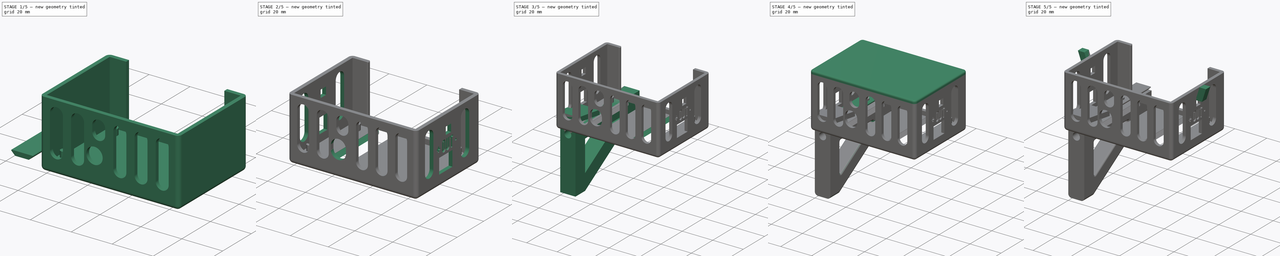
[diagram: build sequence overview — one tinted view per stage of 5, left to right]
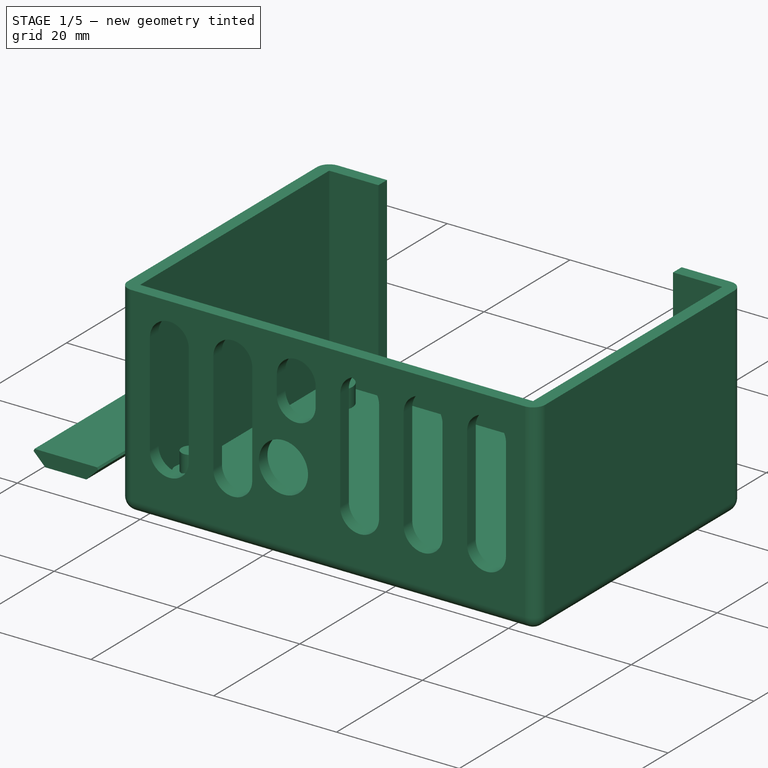
[diagram: stage 1 of 5 — iso view after this stage's code; geometry added in this stage tinted green]
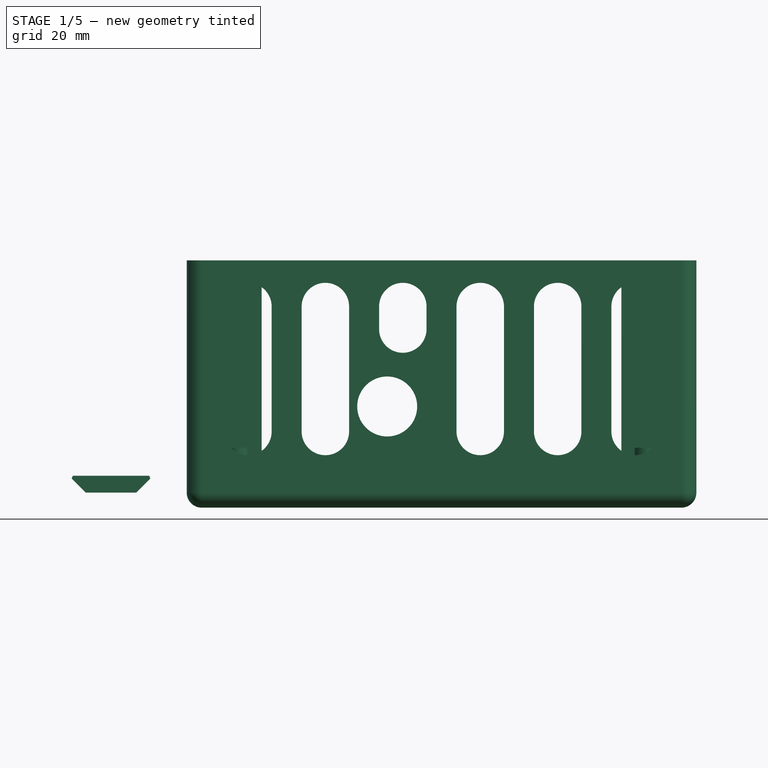
[diagram: stage 1 of 5 — front view after this stage's code; geometry added in this stage tinted green]
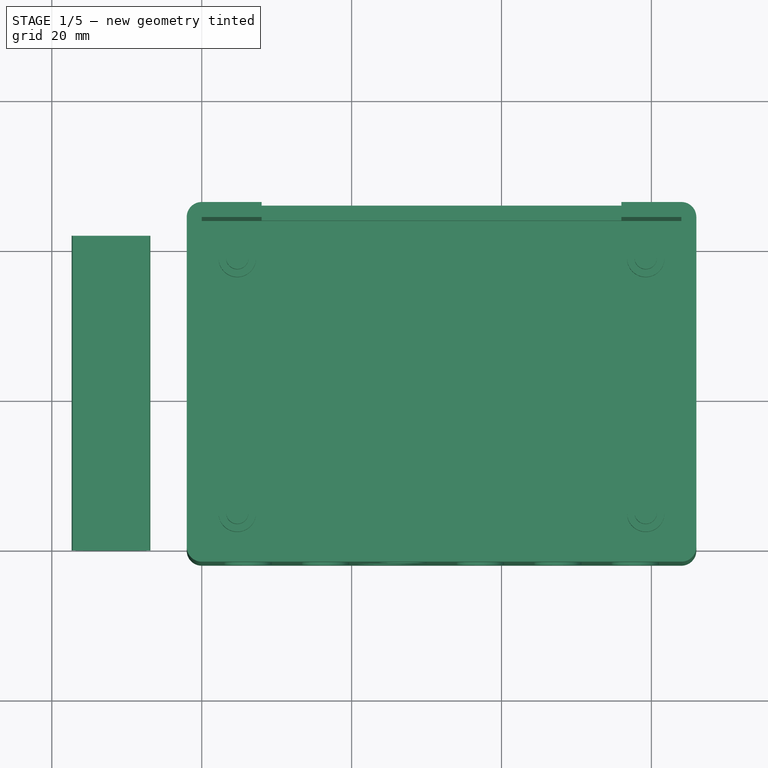
[diagram: stage 1 of 5 — top view after this stage's code; geometry added in this stage tinted green]
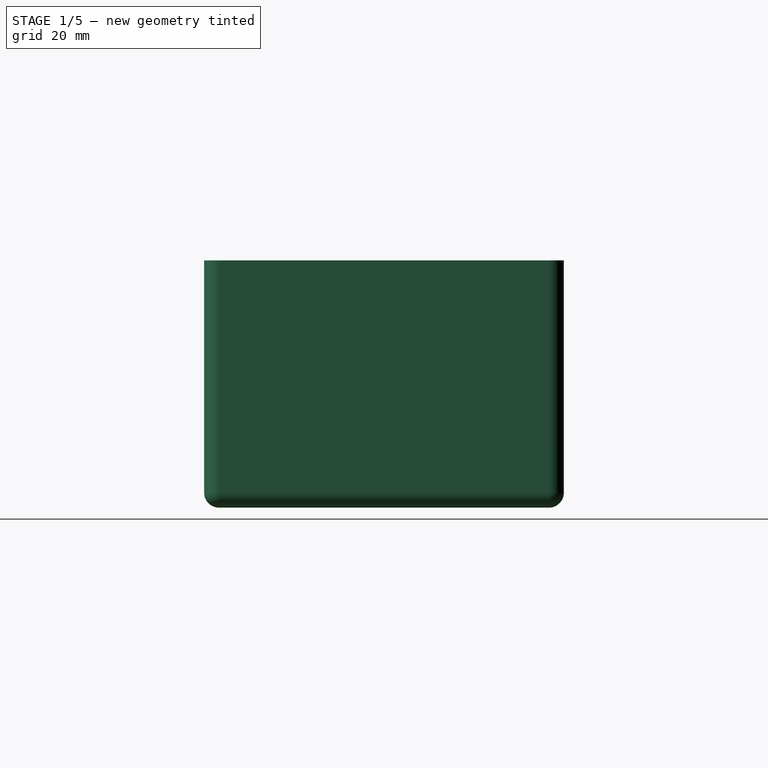
[diagram: stage 1 of 5 — right view after this stage's code; geometry added in this stage tinted green]
FCSTD DOCUMENT  (FreeCAD 0.19R23721 (Git))
Label: XL4016E1
License: All rights reserved
LicenseURL: http://en.wikipedia.org/wiki/All_rights_reserved
objects: Sketcher::SketchObject×26, PartDesign::Pad×11, PartDesign::Pocket×8, PartDesign::Body×8, PartDesign::ShapeBinder×7, PartDesign::Fillet×6, Part::Cut×4, Spreadsheet::Sheet×4, PartDesign::AdditiveLoft×3, PartDesign::Chamfer×3, Part::Part2DObjectPython×2, Part::Extrusion×2, PartDesign::Thickness×1, PartDesign::Draft×1, PartDesign::Plane×1, PartDesign::Mirrored×1
note: 117 computed .brp shape members not serialized (recipe doc carries the construction recipe); baked Part::Feature solids carry a one-line shape summary decoded from their .brp

FEATURE [Sketcher::SketchObject] Sketch
  FullyConstrained = true
  MapMode = 5
  Support = -> [XY_Plane]
  sketch-geometry (4):
    g0: LineSegment StartX=0 StartY=44 StartZ=0 EndX=64 EndY=44 EndZ=0
    g1: LineSegment StartX=64 StartY=44 StartZ=0 EndX=64 EndY=0 EndZ=0
    g2: LineSegment StartX=64 StartY=0 StartZ=0 EndX=0 EndY=0 EndZ=0
    g3: LineSegment StartX=0 StartY=0 StartZ=0 EndX=0 EndY=44 EndZ=0
  constraints (11):
    c: Coincident(g0,g1)
    c: Coincident(g1,g2)
    c: Coincident(g2,g3)
    c: Coincident(g3,g0)
    c: Horizontal(g0)
    c: Horizontal(g2)
    c: Vertical(g1)
    c: Vertical(g3)
    c: Coincident(g2,g-1)
    c: DistanceY(g3,g3) = 44
    c: DistanceX(g2,g2) = 64
FEATURE [PartDesign::Pad] Pad
  Direction = (1,1,1)
  Length = 31
  Length2 = 100
  Profile = -> Sketch
  Type = 0
FEATURE [PartDesign::Thickness] Thickness
  Base = -> Pad [Face6]
  BaseFeature = -> Pad
  Intersection = false
  Join = 0
  Mode = 0
  SupportTransform = false
  Value = 2
FEATURE [Sketcher::SketchObject] Sketch001
  ExternalGeometry = -> [Thickness]
  FullyConstrained = true
  MapMode = 5
  Placement = pos=(0,46,0) rot=(0,0.707107,0.707107;3.14159rad)
  Support = -> [Thickness]
  sketch-geometry (6):
    g0: LineSegment StartX=-56 StartY=31 StartZ=0 EndX=-8 EndY=31 EndZ=0
    g1: LineSegment StartX=-8 StartY=31 StartZ=0 EndX=-8 EndY=3 EndZ=0
    g2: LineSegment StartX=-8 StartY=3 StartZ=0 EndX=-56 EndY=3 EndZ=0
    g3: LineSegment StartX=-56 StartY=3 StartZ=0 EndX=-56 EndY=31 EndZ=0
    g4: LineSegment StartX=-64 StartY=31 StartZ=0 EndX=-56 EndY=31 EndZ=0
    g5: LineSegment StartX=-8 StartY=31 StartZ=0 EndX=0 EndY=31 EndZ=0
  constraints (17):
    c: Coincident(g0,g1)
    c: Coincident(g1,g2)
    c: Coincident(g2,g3)
    c: Coincident(g3,g0)
    c: Horizontal(g0)
    c: Horizontal(g2)
    c: Vertical(g1)
    c: Vertical(g3)
    c: DistanceY(g-1,g1) = 3
    c: Horizontal(g-3,g0)
    c: Coincident(g4,g-3)
    c: Coincident(g4,g0)
    c: Coincident(g5,g0)
    c: Perpendicular(g-2,g5)
    c: Equal(g4,g5)
    c: PointOnObject(g5,g-2)
    c: DistanceX(g5,g5) = 8
FEATURE [PartDesign::Pocket] Pocket
  BaseFeature = -> Thickness
  Length = 5
  Length2 = 100
  Profile = -> Sketch001
  Type = 2
FEATURE [Sketcher::SketchObject] Sketch002
  ExternalGeometry = -> [Pocket]
  FullyConstrained = true
  MapMode = 5
  Support = -> [Pocket]
  sketch-geometry (12):
    g0: LineSegment StartX=4.75 StartY=39 StartZ=0 EndX=59.25 EndY=39 EndZ=0
    g1: LineSegment StartX=59.25 StartY=39 StartZ=0 EndX=59.25 EndY=5 EndZ=0
    g2: LineSegment StartX=59.25 StartY=5 StartZ=0 EndX=4.75 EndY=5 EndZ=0
    g3: LineSegment StartX=4.75 StartY=5 StartZ=0 EndX=4.75 EndY=39 EndZ=0
    g4: LineSegment StartX=0 StartY=39 StartZ=0 EndX=4.75 EndY=39 EndZ=0
    g5: LineSegment StartX=64 StartY=39 StartZ=0 EndX=59.25 EndY=39 EndZ=0
    g6: LineSegment StartX=59.25 StartY=44 StartZ=0 EndX=59.25 EndY=39 EndZ=0
    g7: LineSegment StartX=59.25 StartY=5 StartZ=0 EndX=59.25 EndY=0 EndZ=0
    g8: Circle CenterX=4.75 CenterY=39 CenterZ=0 NormalX=0 NormalY=0 NormalZ=1 AngleXU=0 Radius=2.5
    g9: Circle CenterX=59.25 CenterY=39 CenterZ=0 NormalX=0 NormalY=0 NormalZ=1 AngleXU=0 Radius=2.5
    g10: Circle CenterX=59.25 CenterY=5 CenterZ=0 NormalX=0 NormalY=0 NormalZ=1 AngleXU=0 Radius=2.5
    g11: Circle CenterX=4.75 CenterY=5 CenterZ=0 NormalX=0 NormalY=0 NormalZ=1 AngleXU=0 Radius=2.5
  constraints (32):
    c: Coincident(g0,g1)
    c: Coincident(g1,g2)
    c: Coincident(g2,g3)
    c: Coincident(g3,g0)
    c: Horizontal(g0)
    c: Horizontal(g2)
    c: Vertical(g1)
    c: Vertical(g3)
    c: Coincident(g4,g0)
    c: Horizontal(g4)
    c: Coincident(g5,g0)
    c: Horizontal(g5)
    c: Coincident(g6,g0)
    c: Coincident(g7,g1)
    c: Vertical(g7)
    c: Vertical(g6)
    c: Equal(g4,g5)
    c: Equal(g6,g7)
    c: DistanceX(g0,g0) = 54.5
    c: DistanceY(g3,g3) = 34
    c: Coincident(g8,g0)
    c: Coincident(g9,g0)
    c: Coincident(g10,g1)
    c: Coincident(g11,g2)
    c: Equal(g11,g8)
    c: Equal(g8,g9)
    c: Equal(g9,g10)
    c: Diameter(g8) = 5
    c: PointOnObject(g6,g-5)
    c: PointOnObject(g5,g-4)
    c: PointOnObject(g7,g-6)
    c: PointOnObject(g4,g-3)
FEATURE [PartDesign::Pad] Pad005
  BaseFeature = -> Pocket
  Direction = (1,1,1)
  Length = 3
  Length2 = 100
  Profile = -> Sketch002
  Type = 0
FEATURE [Sketcher::SketchObject] Sketch015
  ExternalGeometry = -> [Pad005]
  FullyConstrained = true
  MapMode = 5
  Support = -> [Pad005]
  sketch-geometry (4):
    g0: Circle CenterX=4.75 CenterY=39 CenterZ=0 NormalX=0 NormalY=0 NormalZ=1 AngleXU=0 Radius=1.5
    g1: Circle CenterX=59.25 CenterY=39 CenterZ=0 NormalX=0 NormalY=0 NormalZ=1 AngleXU=0 Radius=1.5
    g2: Circle CenterX=59.25 CenterY=5 CenterZ=0 NormalX=0 NormalY=0 NormalZ=1 AngleXU=0 Radius=1.5
    g3: Circle CenterX=4.75 CenterY=5 CenterZ=0 NormalX=0 NormalY=0 NormalZ=1 AngleXU=0 Radius=1.5
  constraints (8):
    c: Coincident(g0,g-3)
    c: Coincident(g1,g-4)
    c: Coincident(g2,g-5)
    c: Coincident(g3,g-6)
    c: Equal(g3,g0)
    c: Equal(g0,g1)
    c: Equal(g1,g2)
    c: Diameter(g2) = 3
FEATURE [PartDesign::Pad] Pad006
  BaseFeature = -> Pad005
  Direction = (1,1,1)
  Length = 6
  Length2 = 100
  Profile = -> Sketch015
  Type = 0
FEATURE [Sketcher::SketchObject] Sketch006
  ExternalGeometry = -> [Pad006]
  FullyConstrained = true
  MapMode = 5
  Placement = pos=(0,-2,0) rot=(1,0,0;1.5708rad)
  sketch-geometry (37):
    g0: LineSegment StartX=3 StartY=28 StartZ=0 EndX=61 EndY=28 EndZ=0
    g1: LineSegment StartX=61 StartY=28 StartZ=0 EndX=61 EndY=5 EndZ=0
    g2: LineSegment StartX=61 StartY=5 StartZ=0 EndX=3 EndY=5 EndZ=0
    g3: LineSegment StartX=3 StartY=5 StartZ=0 EndX=3 EndY=28 EndZ=0
    g4: LineSegment StartX=0 StartY=31 StartZ=0 EndX=3 EndY=28 EndZ=0
    g5: LineSegment StartX=61 StartY=28 StartZ=0 EndX=64 EndY=31 EndZ=0
    g6: ArcOfCircle CenterX=57.8333 CenterY=24.8333 CenterZ=0 NormalX=0 NormalY=0 NormalZ=1 AngleXU=0 Radius=3.16667 StartAngle=5e-16 EndAngle=3.14159
    g7: ArcOfCircle CenterX=57.8333 CenterY=8.16667 CenterZ=0 NormalX=0 NormalY=0 NormalZ=1 AngleXU=0 Radius=3.16667 StartAngle=3.14159 EndAngle=6.28319
    g8: LineSegment StartX=54.6667 StartY=24.8333 StartZ=0 EndX=54.6667 EndY=8.16667 EndZ=0
    g9: LineSegment StartX=61 StartY=24.8333 StartZ=0 EndX=61 EndY=8.16667 EndZ=0
    g10: ArcOfCircle CenterX=47.5 CenterY=24.8333 CenterZ=0 NormalX=0 NormalY=0 NormalZ=1 AngleXU=0 Radius=3.16667 StartAngle=0 EndAngle=3.14159
    g11: ArcOfCircle CenterX=47.5 CenterY=8.16667 CenterZ=0 NormalX=0 NormalY=0 NormalZ=1 AngleXU=0 Radius=3.16667 StartAngle=3.14159 EndAngle=6.28319
    g12: LineSegment StartX=44.3333 StartY=24.8333 StartZ=0 EndX=44.3333 EndY=8.16667 EndZ=0
    g13: LineSegment StartX=50.6667 StartY=24.8333 StartZ=0 EndX=50.6667 EndY=8.16667 EndZ=0
    g14: LineSegment StartX=50.6667 StartY=24.8333 StartZ=0 EndX=54.6667 EndY=24.8333 EndZ=0
    g15: ArcOfCircle CenterX=37.1667 CenterY=24.8333 CenterZ=0 NormalX=0 NormalY=0 NormalZ=1 AngleXU=0 Radius=3.16667 StartAngle=6e-16 EndAngle=3.14159
    g16: ArcOfCircle CenterX=37.1667 CenterY=8.16667 CenterZ=0 NormalX=0 NormalY=0 NormalZ=1 AngleXU=0 Radius=3.16667 StartAngle=3.14159 EndAngle=6.28319
    g17: LineSegment StartX=34 StartY=24.8333 StartZ=0 EndX=34 EndY=8.16667 EndZ=0
    g18: LineSegment StartX=40.3333 StartY=24.8333 StartZ=0 EndX=40.3333 EndY=8.16667 EndZ=0
    g19: LineSegment StartX=44.3333 StartY=24.8333 StartZ=0 EndX=40.3333 EndY=24.8333 EndZ=0
    g20: ArcOfCircle CenterX=26.8333 CenterY=24.8333 CenterZ=0 NormalX=0 NormalY=0 NormalZ=1 AngleXU=0 Radius=3.16667 StartAngle=2e-16 EndAngle=3.14159
    g21: ArcOfCircle CenterX=26.8333 CenterY=21.8333 CenterZ=0 NormalX=0 NormalY=0 NormalZ=1 AngleXU=0 Radius=3.16667 StartAngle=3.14159 EndAngle=6.28319
    g22: LineSegment StartX=23.6667 StartY=24.8333 StartZ=0 EndX=23.6667 EndY=21.8333 EndZ=0
    g23: LineSegment StartX=30 StartY=24.8333 StartZ=0 EndX=30 EndY=21.8333 EndZ=0
    g24: LineSegment StartX=30 StartY=24.8333 StartZ=0 EndX=34 EndY=24.8333 EndZ=0
    g25: ArcOfCircle CenterX=16.5 CenterY=24.8333 CenterZ=0 NormalX=0 NormalY=0 NormalZ=1 AngleXU=0 Radius=3.16667 StartAngle=0 EndAngle=3.14159
    g26: ArcOfCircle CenterX=16.5 CenterY=8.16667 CenterZ=0 NormalX=0 NormalY=0 NormalZ=1 AngleXU=0 Radius=3.16667 StartAngle=3.14159 EndAngle=6.28319
    g27: LineSegment StartX=13.3333 StartY=24.8333 StartZ=0 EndX=13.3333 EndY=8.16667 EndZ=0
    g28: LineSegment StartX=19.6667 StartY=24.8333 StartZ=0 EndX=19.6667 EndY=8.16667 EndZ=0
    g29: LineSegment StartX=19.6667 StartY=24.8333 StartZ=0 EndX=23.6667 EndY=24.8333 EndZ=0
    g30: ArcOfCircle CenterX=6.16667 CenterY=24.8333 CenterZ=0 NormalX=0 NormalY=0 NormalZ=1 AngleXU=0 Radius=3.16667 StartAngle=4e-16 EndAngle=3.14159
    g31: ArcOfCircle CenterX=6.16667 CenterY=8.16667 CenterZ=0 NormalX=0 NormalY=0 NormalZ=1 AngleXU=0 Radius=3.16667 StartAngle=3.14159 EndAngle=6.28319
    g32: LineSegment StartX=3 StartY=24.8333 StartZ=0 EndX=3 EndY=8.16667 EndZ=0
    g33: LineSegment StartX=9.33333 StartY=24.8333 StartZ=0 EndX=9.33333 EndY=8.16667 EndZ=0
    g34: LineSegment StartX=9.33333 StartY=24.8333 StartZ=0 EndX=13.3333 EndY=24.8333 EndZ=0
    g35: GeomPoint X=4.75 Y=3 Z=0
    g36: Circle CenterX=24.75 CenterY=11.5 CenterZ=0 NormalX=0 NormalY=0 NormalZ=1 AngleXU=0 Radius=4
  constraints (90):
    c: Coincident(g0,g1)
    c: Coincident(g1,g2)
    c: Coincident(g2,g3)
    c: Coincident(g3,g0)
    c: Horizontal(g0)
    c: Coincident(g4,g0)
    c: Coincident(g5,g0)
    c: DistanceX(g1,g-4) = 3
    c: Angle(g4) = -0.785398
    c: Equal(g5,g4)
    c: Tangent(g6,g9) = 1.5708
    c: Tangent(g6,g8) = -1.5708
    c: Tangent(g8,g7) = -1.5708
    c: Tangent(g9,g7) = 1.5708
    c: Vertical(g8)
    c: Equal(g6,g7)
    c: Tangent(g6,g0)
    c: Tangent(g7,g2)
    c: PointOnObject(g7,g1)
    c: Tangent(g10,g13) = 1.5708
    c: Tangent(g10,g12) = -1.5708
    c: Tangent(g12,g11) = -1.5708
    c: Tangent(g13,g11) = 1.5708
    c: Vertical(g12)
    c: Equal(g10,g11)
    c: Horizontal(g10,g6)
    c: Horizontal(g11,g7)
    c: Equal(g11,g7)
    c: Coincident(g14,g10)
    c: Coincident(g14,g6)
    c: DistanceX(g14,g14) = 4
    c: Tangent(g15,g18) = 1.5708
    c: Tangent(g15,g17) = -1.5708
    c: Tangent(g17,g16) = -1.5708
    c: Tangent(g18,g16) = 1.5708
    c: Vertical(g17)
    c: Equal(g15,g16)
    c: Horizontal(g15,g10)
    c: Equal(g15,g10)
    c: Coincident(g19,g10)
    c: Equal(g19,g14)
    c: Horizontal(g16,g11)
    c: Coincident(g19,g15)
    c: Tangent(g20,g23) = 1.5708
    c: Tangent(g20,g22) = -1.5708
    c: Tangent(g22,g21) = -1.5708
    c: Tangent(g23,g21) = 1.5708
    c: Vertical(g22)
    c: Equal(g20,g21)
    c: Horizontal(g20,g15)
    c: Equal(g20,g15)
    c: Coincident(g24,g20)
    c: Coincident(g24,g15)
    c: Equal(g24,g19)
    c: Tangent(g25,g28) = 1.5708
    c: Tangent(g25,g27) = -1.5708
    c: Tangent(g27,g26) = -1.5708
    c: Tangent(g28,g26) = 1.5708
    c: Vertical(g27)
    c: Equal(g25,g26)
    c: Horizontal(g25,g20)
    c: Equal(g25,g20)
    c: Coincident(g29,g25)
    c: Coincident(g29,g20)
    c: Equal(g24,g29)
    c: Tangent(g30,g33) = 1.5708
    c: Tangent(g30,g32) = -1.5708
    c: Tangent(g32,g31) = -1.5708
    c: Tangent(g33,g31) = 1.5708
    c: Vertical(g32)
    c: Equal(g30,g31)
    c: Horizontal(g31,g26)
    c: Horizontal(g25,g30)
    c: Equal(g30,g25)
    c: PointOnObject(g30,g3)
    c: Coincident(g34,g30)
    c: Coincident(g34,g25)
    c: Equal(g34,g29)
    c: Coincident(g5,g-3)
    c: Coincident(g4,g-3)
    c: Symmetric(g-5,g-5,g35)
    c: Diameter(g36) = 8
    c: DistanceX(g35,g36) = 20
    c: DistanceY(g35,g36) = 8.5
    c: DistanceY(g23,g23) = 3
    c: Horizontal(g16,g26)
    c: Horizontal(g2)
    c: DistanceY(g-5,g2) = 2
    c: Vertical(g3)
    c: Vertical(g1)
FEATURE [PartDesign::Pocket] Pocket008
  BaseFeature = -> Pad006
  Length = 5
  Length2 = 100
  Profile = -> Sketch006
  Type = 2
FEATURE [PartDesign::Body] Body004  label="mount"
  Group = -> [Sketch022,Pad007,Sketch024,Pocket011,Sketch023,Pocket002,Pocket001,Sketch003,Pad008,Sketch021,Chamfer,Fillet004,Fillet005]
  Origin = -> Origin004
  Placement = pos=(-17,-21,0) rot=(0,0,1;0rad)
  Tip = -> Fillet005
FEATURE [Spreadsheet::Sheet] Spreadsheet  label="dim"
  cells = A2=length; B2(length)=60; C2=full length of the horizontal support; A3=height; B3(height)=40; C3=full height; A4=thickness; B4(thickness)=10; C4=mount thickness; A5=bar_thickness; B5(bar_thickness)=9; C5=height/width of each support "bar"; A6=screw_hole_d; B6(screw_hole_d)=4.5; C6=diameter of the hole for the mounting screw; A7=screw_head_hole_d; B7(screw_head_hole_d)=7; C7=diameter of the screw head hole; A8=screw_head_hole_h; B8(screw_head_hole_h)=4; C8=depth of the screw head hole; A9=inner_chamfer; B9(inner_chamfer)=1; C9=radius of the inner chamfer; A10=outer_chamfer; B10(outer_chamfer)=2; C10=radius of the outer chamfer; A12=dovetail_width_outer; B12(dovetail_width_outer)==thickness; C12=outer dovetail joint width; A13=dovetail_width_inner; B13(dovetail_width_inner)==dovetail_width_outer - 2 * dovetail_height; C13=inner dovetail joint width; A14=dovetail_height; B14(dovetail_height)=2; C14=dovetail joint height; A15=dovetail_wall_offset; B15(dovetail_wall_offset)=20; C15=offset between the dovetail start and the wall; A16=dovetail_length; B16(dovetail_length)==length - dovetail_wall_offset; C16=length of the dovetail joint; A17=dovetail_trim; B17(dovetail_trim)=0.5; C17=dovetail fillet; A19=dovetail_slot_slack; B19(dovetail_slot_slack)=0.25; C19=size difference between the dovetail and the mask for the dovetail slot; A20=dovetail_slot_length; B20(dovetail_slot_length)=42; C20=length of the mask for the dovetail slot; A22=dt_support_over; B22(dt_support_over)=2; C22=mm to extend over the dovetail; A23=dt_support_width; B23(dt_support_width)=3; C23=support width; A24=dt_support_z_sep; B24(dt_support_z_sep)=0.2; C24=vertial separation between support and dovetail; A25=dt_support_overlap; B25(dt_support_overlap)=0.5; C25=horizontal overlap between support and dovetail; A26=dt_support_base_offset; B26(dt_support_base_offset)=3; C26=horizontal offset between bottom and top end of the dovetail support
FEATURE [Sketcher::SketchObject] Sketch007
  FullyConstrained = false
  MapMode = 5
  Placement = pos=(0,0,0) rot=(0,0.707107,0.707107;3.14159rad)
  Support = -> [XZ_Plane005]
  expr: Constraints[6] = <<dim>>.dovetail_height
  expr: Constraints[9] = <<dim>>.dovetail_width_outer
  expr: Constraints[16] = <<dim>>.dovetail_slot_slack
  expr: Constraints[8] = <<dim>>.dovetail_width_inner
  expr: Constraints[20] = <<dim>>.dovetail_slot_slack
  sketch-geometry (10):
    g0: LineSegment StartX=7.10111 StartY=2 StartZ=0 EndX=17.1011 EndY=2 EndZ=0
    g1: LineSegment StartX=17.1011 StartY=2 StartZ=0 EndX=15.1011 EndY=0 EndZ=0
    g2: LineSegment StartX=7.10111 StartY=2 StartZ=0 EndX=9.10111 EndY=0 EndZ=0
    g3: LineSegment StartX=9.10111 StartY=0 StartZ=0 EndX=15.1011 EndY=0 EndZ=0
    g4: LineSegment StartX=6.49756 StartY=2.25 StartZ=0 EndX=17.7047 EndY=2.25 EndZ=0
    g5: LineSegment StartX=17.7047 StartY=2.25 StartZ=0 EndX=15.4547 EndY=0 EndZ=0
    g6: LineSegment StartX=15.4547 StartY=0 StartZ=0 EndX=8.74756 EndY=0 EndZ=0
    g7: LineSegment StartX=8.74756 StartY=0 StartZ=0 EndX=6.49756 EndY=2.25 EndZ=0
    g8: LineSegment StartX=17.1011 StartY=2 StartZ=0 EndX=17.2779 EndY=1.82322 EndZ=0
    g9: LineSegment StartX=7.10111 StartY=2 StartZ=0 EndX=6.92433 EndY=1.82322 EndZ=0
  constraints (29):
    c: Horizontal(g0)
    c: Coincident(g0,g1)
    c: Coincident(g2,g0)
    c: Coincident(g3,g2)
    c: Coincident(g3,g1)
    c: Horizontal(g3)
    c: DistanceY(g2,g0) = 2
    c: Equal(g2,g1)
    c: DistanceX(g3,g3) = 6
    c: DistanceX(g0,g0) = 10
    c: Horizontal(g4)
    c: Coincident(g4,g5)
    c: Coincident(g5,g6)
    c: Coincident(g6,g7)
    c: Coincident(g7,g4)
    c: Parallel(g7,g2)
    c: DistanceY(g0,g4) = 0.25
    c: Coincident(g8,g0)
    c: PointOnObject(g8,g5)
    c: Perpendicular(g5,g8)
    c: Distance(g8) = 0.25
    c: Equal(g7,g5)
    c: Coincident(g9,g0)
    c: PointOnObject(g9,g7)
    c: Perpendicular(g7,g9)
    c: Equal(g9,g8)
    c: Horizontal(g6)
    c: Horizontal(g1,g5)
    c: Horizontal(g5,g-1)
FEATURE [PartDesign::Pad] Pad009
  Direction = (1,1,1)
  Length = 42
  Length2 = 100
  Placement = pos=(0,0,0) rot=(1,0,0;1.5708rad)
  Profile = -> Sketch007
  Type = 0
  expr: Length = <<dim>>.dovetail_slot_length
FEATURE [PartDesign::Chamfer] Chamfer001
  Angle = 45
  Base = -> Pad009 [Edge2,Edge1]
  BaseFeature = -> Pad009
  ChamferType = 0
  FlipDirection = false
  Placement = pos=(0,0,0) rot=(1,0,0;1.5708rad)
  Size = 0.5
  Size2 = 1
  SupportTransform = false
  expr: Size = <<dim>>.dovetail_trim
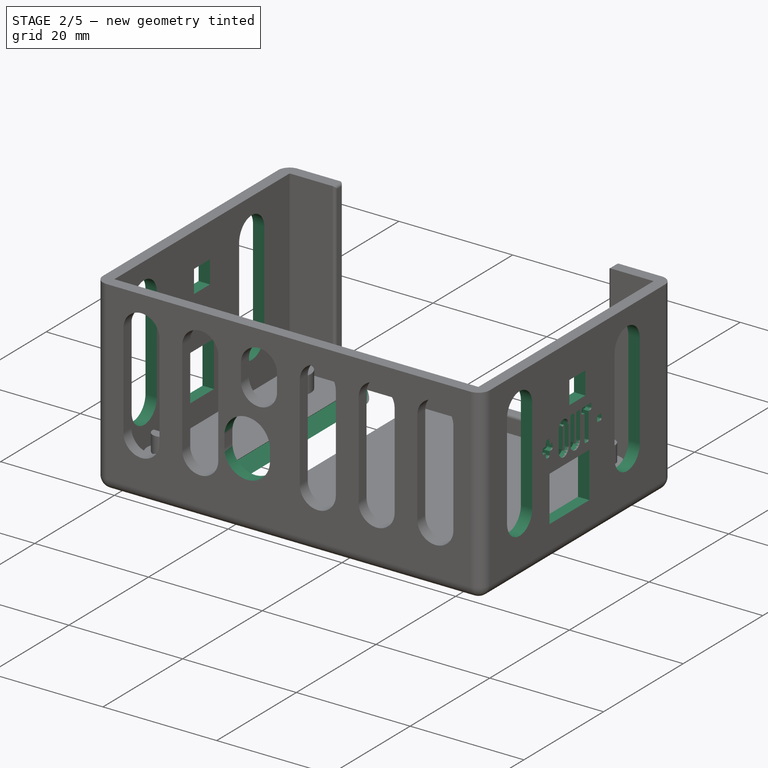
[diagram: stage 2 of 5 — iso view after this stage's code; geometry added in this stage tinted green]
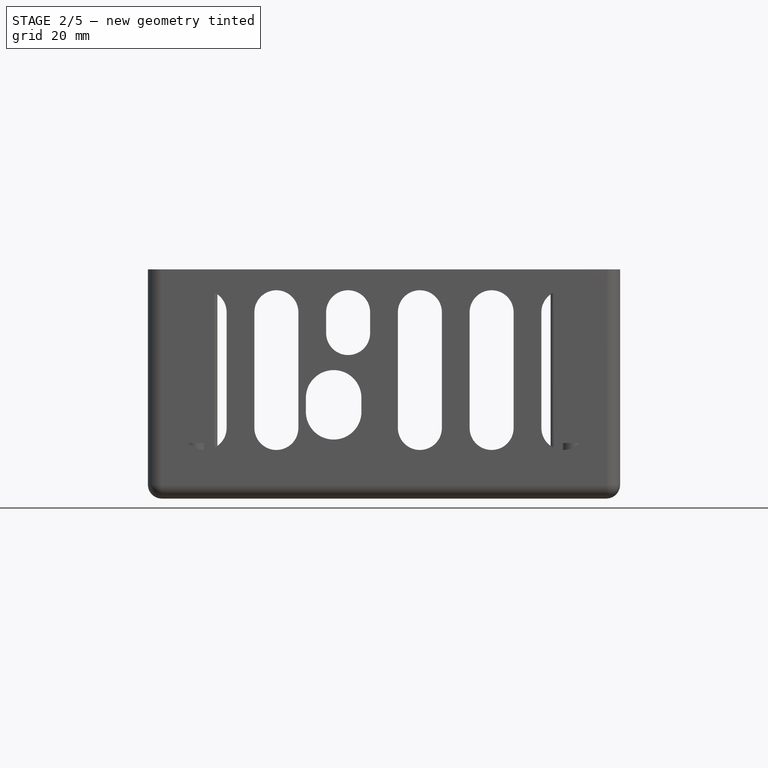
[diagram: stage 2 of 5 — front view after this stage's code; geometry added in this stage tinted green]
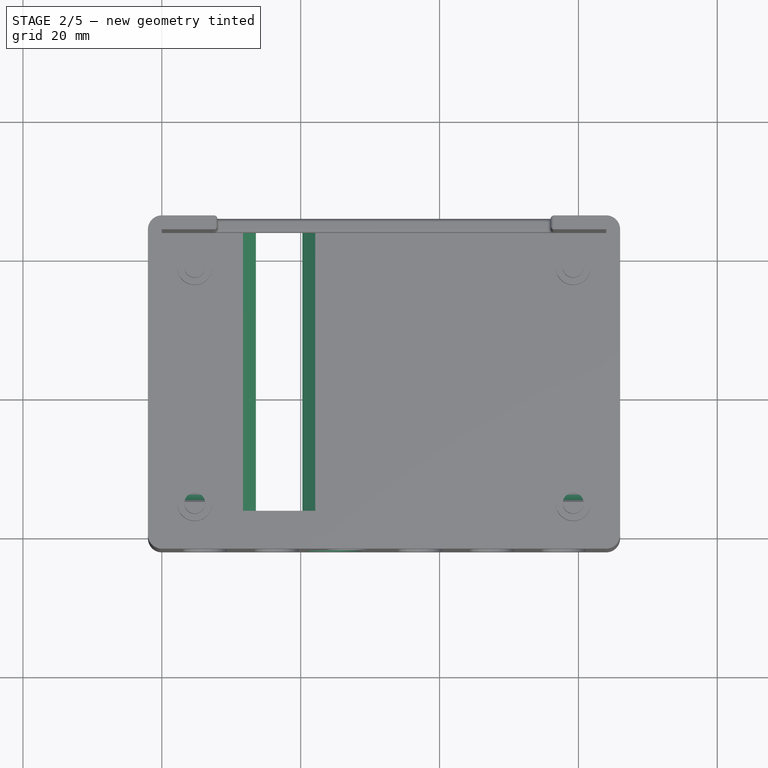
[diagram: stage 2 of 5 — top view after this stage's code; geometry added in this stage tinted green]
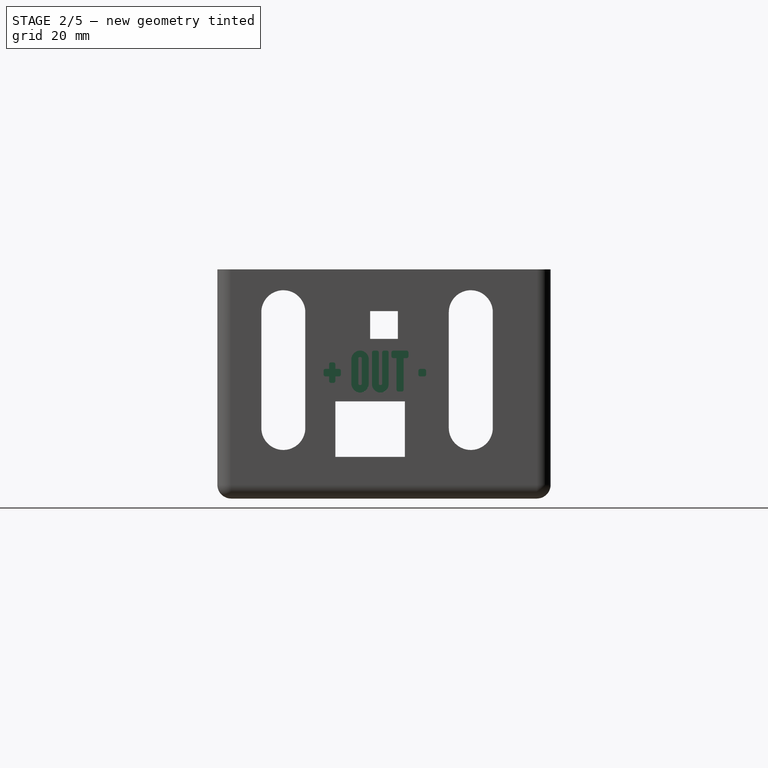
[diagram: stage 2 of 5 — right view after this stage's code; geometry added in this stage tinted green]
FEATURE [Sketcher::SketchObject] Sketch004
  ExternalGeometry = -> [Pocket008]
  FullyConstrained = false
  MapMode = 5
  Placement = pos=(-2,0,0) rot=(0.57735,-0.57735,-0.57735;2.0944rad)
  Support = -> [Pocket008]
  sketch-geometry (27):
    g0: LineSegment StartX=-25 StartY=4 StartZ=0 EndX=-15 EndY=4 EndZ=0
    g1: LineSegment StartX=-15 StartY=4 StartZ=0 EndX=-15 EndY=12 EndZ=0
    g2: LineSegment StartX=-15 StartY=12 StartZ=0 EndX=-25 EndY=12 EndZ=0
    g3: LineSegment StartX=-25 StartY=12 StartZ=0 EndX=-25 EndY=4 EndZ=0
    g4: GeomPoint X=-22 Y=31 Z=0
    g5: GeomPoint X=-39 Y=3 Z=0
    g6: LineSegment StartX=-24 StartY=25 StartZ=0 EndX=-20 EndY=25 EndZ=0
    g7: LineSegment StartX=-20 StartY=25 StartZ=0 EndX=-20 EndY=21 EndZ=0
    g8: LineSegment StartX=-20 StartY=21 StartZ=0 EndX=-24 EndY=21 EndZ=0
    g9: LineSegment StartX=-24 StartY=21 StartZ=0 EndX=-24 EndY=25 EndZ=0
    g10: GeomPoint X=-22 Y=25 Z=0
    g11: ArcOfCircle CenterX=-7.5 CenterY=8.16667 CenterZ=0 NormalX=0 NormalY=0 NormalZ=1 AngleXU=0 Radius=3.16667 StartAngle=3.14159 EndAngle=6.28319
    g12: ArcOfCircle CenterX=-7.5 CenterY=24.8333 CenterZ=0 NormalX=0 NormalY=0 NormalZ=1 AngleXU=0 Radius=3.16667 StartAngle=5e-16 EndAngle=3.14159
    g13: LineSegment StartX=-4.33333 StartY=8.16667 StartZ=0 EndX=-4.33333 EndY=24.8333 EndZ=0
    g14: LineSegment StartX=-10.6667 StartY=8.16667 StartZ=0 EndX=-10.6667 EndY=24.8333 EndZ=0
    g15: GeomPoint X=-15 Y=24.8333 Z=0
    g16: GeomPoint X=-7.5 Y=5 Z=0
    g17: ArcOfCircle CenterX=-34.5 CenterY=8.16667 CenterZ=0 NormalX=0 NormalY=0 NormalZ=1 AngleXU=0 Radius=3.16667 StartAngle=3.14159 EndAngle=6.28319
    g18: ArcOfCircle CenterX=-34.5 CenterY=24.8333 CenterZ=0 NormalX=0 NormalY=0 NormalZ=1 AngleXU=0 Radius=3.16667 StartAngle=0 EndAngle=3.14159
    g19: LineSegment StartX=-31.3333 StartY=8.16667 StartZ=0 EndX=-31.3333 EndY=24.8333 EndZ=0
    g20: LineSegment StartX=-37.6667 StartY=8.16667 StartZ=0 EndX=-37.6667 EndY=24.8333 EndZ=0
    g21: GeomPoint X=-44 Y=23.4675 Z=0
    g22: GeomPoint X=-25 Y=26.1991 Z=0
    g23: LineSegment StartX=-44 StartY=31 StartZ=0 EndX=0 EndY=31 EndZ=0
    g24: GeomPoint X=-7.5 Y=28 Z=0
    g25: GeomPoint X=0 Y=9.85697 Z=0
    g26: GeomPoint X=0 Y=24.8333 Z=0
  constraints (60):
    c: Symmetric(g-3,g-3,g5)
    c: DistanceY(g3,g3) = 8
    c: DistanceX(g2,g2) = 10
    c: DistanceX(g5,g0) = 14
    c: DistanceY(g5,g0) = 1
    c: Coincident(g0,g3)
    c: Coincident(g3,g2)
    c: Horizontal(g2)
    c: Horizontal(g0)
    c: Vertical(g3)
    c: Coincident(g1,g0)
    c: Coincident(g1,g2)
    c: Vertical(g1)
    c: Coincident(g6,g7)
    c: Coincident(g7,g8)
    c: Coincident(g8,g9)
    c: Coincident(g9,g6)
    c: Horizontal(g6)
    c: Horizontal(g8)
    c: Vertical(g7)
    c: Vertical(g9)
    c: Symmetric(g6,g6,g10)
    c: Vertical(g10,g4)
    c: DistanceY(g10,g4) = 6
    c: DistanceX(g6,g6) = 4
    c: DistanceY(g7,g7) = 4
    c: Tangent(g11,g14) = 1.5708
    c: Tangent(g11,g13) = -1.5708
    c: Tangent(g13,g12) = -1.5708
    c: Tangent(g14,g12) = 1.5708
    c: Vertical(g13)
    c: Equal(g11,g12)
    c: PointOnObject(g15,g1)
    c: Vertical(g16,g11)
    c: Tangent(g17,g20) = 1.5708
    c: Tangent(g17,g19) = -1.5708
    c: Tangent(g19,g18) = -1.5708
    c: Tangent(g20,g18) = 1.5708
    c: Vertical(g19)
    c: Equal(g17,g18)
    c: Equal(g11,g17)
    c: Horizontal(g11,g17)
    c: Horizontal(g18,g12)
    c: PointOnObject(g21,g-5)
    c: PointOnObject(g22,g3)
    c: Coincident(g23,g-5)
    c: PointOnObject(g23,g-2)
    c: Horizontal(g23)
    c: Symmetric(g23,g23,g4)
    c: PointOnObject(g16,g11)
    c: PointOnObject(g24,g12)
    c: Vertical(g24,g12)
    c: PointOnObject(g25,g-2)
    c: PointOnObject(g26,g-2)
    c: Horizontal(g26,g12)
    c: Symmetric(g26,g15,g12)
    c: Symmetric(g22,g21,g18)
    c: Horizontal(g16,g-7)
    c: Horizontal(g11,g-8)
    c: Horizontal(g12,g-8)
FEATURE [PartDesign::Pocket] Pocket009
  BaseFeature = -> Pocket008
  Length = 5
  Length2 = 100
  Profile = -> Sketch004
  Type = 1
FEATURE [PartDesign::Fillet] Fillet
  Base = -> Pocket009 [Face6,Face8,Face7]
  BaseFeature = -> Pocket009
  Radius = 0.5
  SupportTransform = false
FEATURE [PartDesign::Body] Body003  label="cover-support-2"
  Group = -> [ShapeBinder005,ShapeBinder006,Sketch018,Sketch019,AdditiveLoft001]
  Origin = -> Origin003
  Tip = -> AdditiveLoft001
FEATURE [Part::Part2DObjectPython] ShapeString  # Draft 2D object (typed FeaturePython)
  FontFile = <path> XL4016E1 box/H.H. Samuel-font-defharo.ttf
  Placement = pos=(-2,26.49,13.33) rot=(0.57735,-0.57735,-0.57735;2.0944rad)
  Size = 3
  String = - IN +
  Tracking = 0
FEATURE [Part::Extrusion] Extrude
  Base = -> ShapeString
  Dir = (-1,-2e-16,2e-16)
  DirMode = 2
  FaceMakerClass = Part::FaceMakerBullseye
  LengthFwd = 1
  LengthRev = 0
  Placement = pos=(1,0,0) rot=(0,0,1;0rad)
  Solid = false
  Symmetric = false
FEATURE [Part::Part2DObjectPython] ShapeString001  # Draft 2D object (typed FeaturePython)
  FontFile = <path> XL4016E1 box/H.H. Samuel-font-defharo.ttf
  Placement = pos=(65,13.04,13.42) rot=(0.57735,0.57735,0.57735;2.0944rad)
  Size = 3
  String = + OUT -
  Tracking = 0
FEATURE [Part::Extrusion] Extrude001
  Base = -> ShapeString001
  Dir = (1,-2e-16,2e-16)
  DirMode = 2
  FaceMakerClass = Part::FaceMakerBullseye
  LengthFwd = 1
  LengthRev = 0
  Solid = false
  Symmetric = false
FEATURE [Sketcher::SketchObject] Sketch020
  ExternalGeometry = -> [Fillet]
  FullyConstrained = true
  MapMode = 5
  Placement = pos=(0,-2,0) rot=(1,0,0;1.5708rad)
  Support = -> [Fillet]
  sketch-geometry (4):
    g0: ArcOfCircle CenterX=24.75 CenterY=12.5 CenterZ=0 NormalX=0 NormalY=0 NormalZ=1 AngleXU=0 Radius=4 StartAngle=-3.6e-15 EndAngle=3.14159
    g1: ArcOfCircle CenterX=24.75 CenterY=10.5 CenterZ=0 NormalX=0 NormalY=0 NormalZ=1 AngleXU=0 Radius=4 StartAngle=3.14159 EndAngle=6.28319
    g2: LineSegment StartX=20.75 StartY=12.5 StartZ=0 EndX=20.75 EndY=10.5 EndZ=0
    g3: LineSegment StartX=28.75 StartY=12.5 StartZ=0 EndX=28.75 EndY=10.5 EndZ=0
  constraints (9):
    c: Tangent(g0,g3) = 1.5708
    c: Tangent(g0,g2) = -1.5708
    c: Tangent(g2,g1) = -1.5708
    c: Tangent(g3,g1) = 1.5708
    c: Vertical(g2)
    c: Equal(g0,g1)
    c: DistanceY(g3,g3) = 2
    c: Symmetric(g0,g1,g-3)
    c: Equal(g0,g-3)
FEATURE [PartDesign::Pocket] Pocket010
  BaseFeature = -> Fillet
  Length = 5
  Length2 = 100
  Profile = -> Sketch020
  Type = 0
FEATURE [PartDesign::Body] Body  label="box"
  Group = -> [Sketch,Pad,Thickness,Sketch001,Sketch002,Sketch004,Sketch006,Pocket,Pad005,Sketch015,Pad006,Pocket008,Pocket009,Fillet,Sketch020,Pocket010]
  Origin = -> Origin
  Tip = -> Pocket010
FEATURE [Part::Cut] Cut
  Base = -> Body
  Tool = -> Extrude
FEATURE [Part::Cut] Cut001  label="labeled box"
  Base = -> Cut
  Tool = -> Extrude001
FEATURE [PartDesign::Body] Body007  label="dovetail support"
  Group = -> [Sketch005,Sketch026,AdditiveLoft002]
  Origin = -> Origin007
  Placement = pos=(-17,-21,-1) rot=(0,0,1;0rad)
  Tip = -> AdditiveLoft002
FEATURE [Spreadsheet::Sheet] Spreadsheet003  label="dim003"
  cells = A2=length; B2(length)=60; C2=full length of the horizontal support; A3=height; B3(height)=40; C3=full height; A4=thickness; B4(thickness)=10; C4=mount thickness; A5=bar_thickness; B5(bar_thickness)=9; C5=height/width of each support "bar"; A6=screw_hole_d; B6(screw_hole_d)=4.5; C6=diameter of the hole for the mounting screw; A7=screw_head_hole_d; B7(screw_head_hole_d)=7; C7=diameter of the screw head hole; A8=screw_head_hole_h; B8(screw_head_hole_h)=4; C8=depth of the screw head hole; A9=inner_chamfer; B9(inner_chamfer)=1; C9=radius of the inner chamfer; A10=outer_chamfer; B10(outer_chamfer)=2; C10=radius of the outer chamfer; A12=dovetail_width_outer; B12(dovetail_width_outer)==thickness; C12=outer dovetail joint width; A13=dovetail_width_inner; B13(dovetail_width_inner)==dovetail_width_outer - 2 * dovetail_height; C13=inner dovetail joint width; A14=dovetail_height; B14(dovetail_height)=2; C14=dovetail joint height; A15=dovetail_wall_offset; B15(dovetail_wall_offset)=20; C15=offset between the dovetail start and the wall; A16=dovetail_length; B16(dovetail_length)==length - dovetail_wall_offset; C16=length of the dovetail joint; A17=dovetail_trim; B17(dovetail_trim)=0.5; C17=dovetail fillet; A19=dovetail_slot_slack; B19(dovetail_slot_slack)=0.25; C19=size difference between the dovetail and the mask for the dovetail slot; A20=dovetail_slot_length; B20(dovetail_slot_length)==length; C20=length of the mask for the dovetail slot; A22=dt_support_over; B22(dt_support_over)=2; C22=mm to extend over the dovetail; A23=dt_support_width; B23(dt_support_width)=3; C23=support width; A24=dt_support_z_sep; B24(dt_support_z_sep)=0.2; C24=vertial separation between support and dovetail; A25=dt_support_overlap; B25(dt_support_overlap)=0.5; C25=horizontal overlap between support and dovetail; A26=dt_support_base_offset; B26(dt_support_base_offset)=3; C26=horizontal offset between bottom and top end of the dovetail support
FEATURE [Part::Cut] Cut002
  Base = -> Cut001
  Refine = true
  Tool = -> Body005
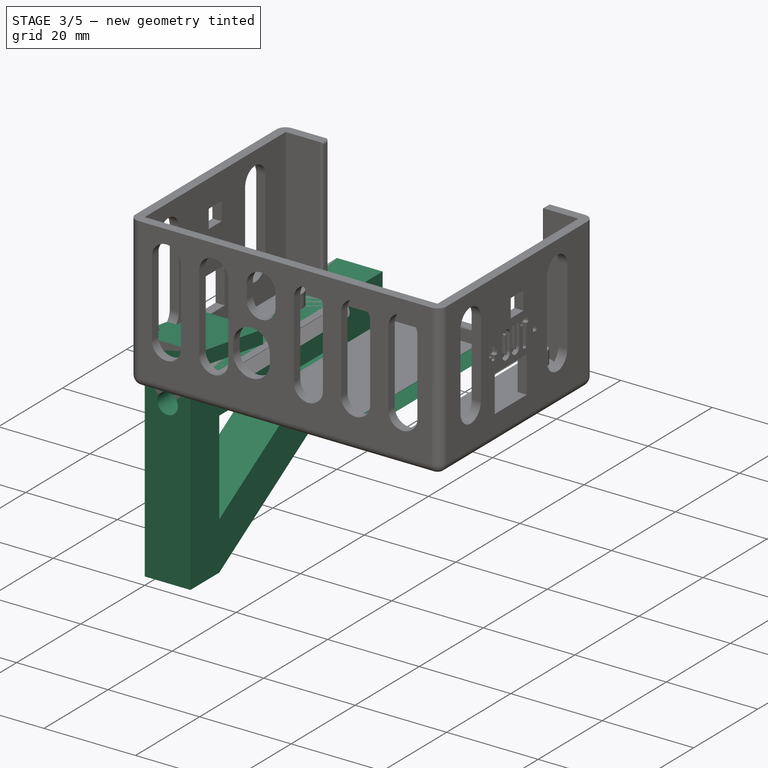
[diagram: stage 3 of 5 — iso view after this stage's code; geometry added in this stage tinted green]
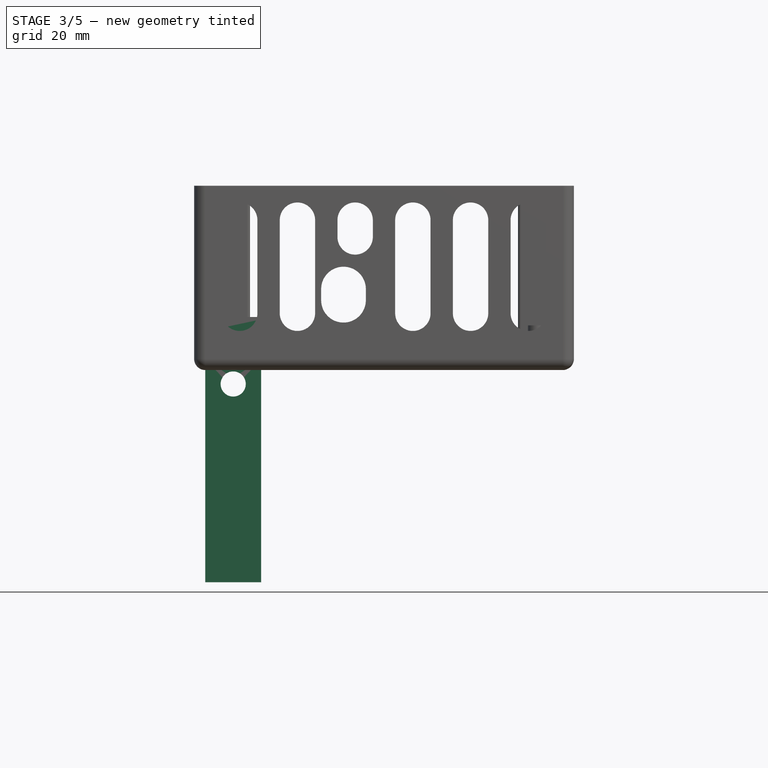
[diagram: stage 3 of 5 — front view after this stage's code; geometry added in this stage tinted green]
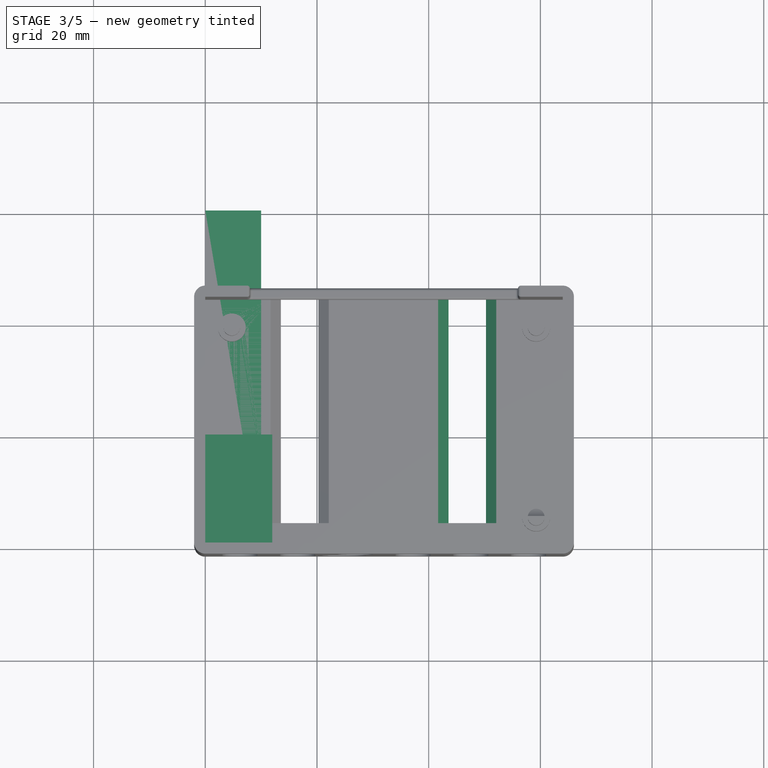
[diagram: stage 3 of 5 — top view after this stage's code; geometry added in this stage tinted green]
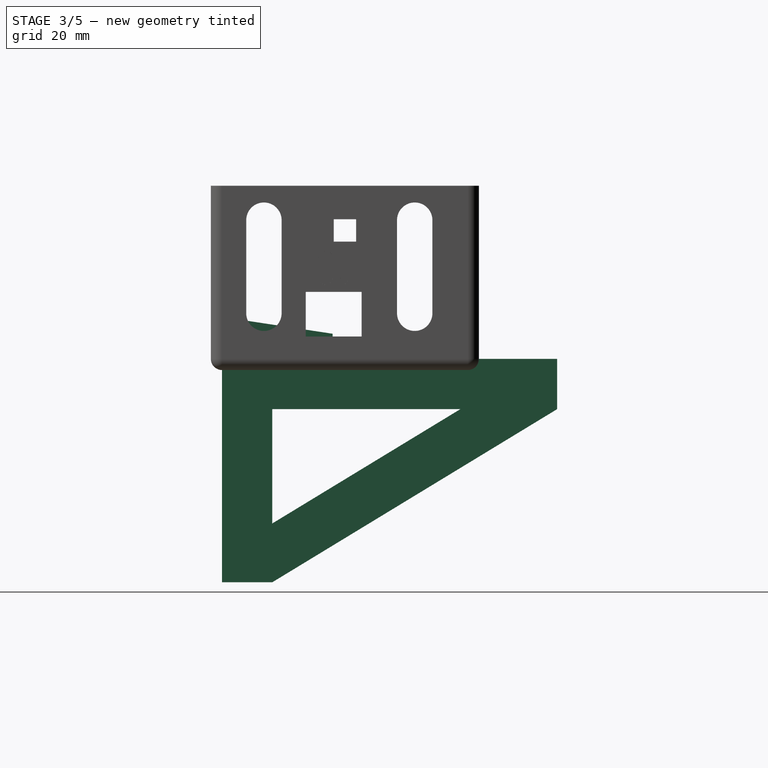
[diagram: stage 3 of 5 — right view after this stage's code; geometry added in this stage tinted green]
FEATURE [PartDesign::Body] Body002  label="cover-support-1"
  Group = -> [ShapeBinder003,Sketch016,ShapeBinder004,Sketch017,AdditiveLoft]
  Origin = -> Origin002
  Tip = -> AdditiveLoft
FEATURE [Spreadsheet::Sheet] Spreadsheet001  label="dim001"
  cells = A2=length; B2(length)=60; C2=full length of the horizontal support; A3=height; B3(height)=40; C3=full height; A4=thickness; B4(thickness)=10; C4=mount thickness; A5=bar_thickness; B5(bar_thickness)=9; C5=height/width of each support "bar"; A6=screw_hole_d; B6(screw_hole_d)=4.5; C6=diameter of the hole for the mounting screw; A7=screw_head_hole_d; B7(screw_head_hole_d)=7; C7=diameter of the screw head hole; A8=screw_head_hole_h; B8(screw_head_hole_h)=10; C8=depth of the screw head hole; A9=inner_chamfer; B9(inner_chamfer)=1; C9=radius of the inner chamfer; A10=outer_chamfer; B10(outer_chamfer)=2; C10=radius of the outer chamfer; A12=dovetail_width_outer; B12(dovetail_width_outer)==thickness; C12=outer dovetail joint width; A13=dovetail_width_inner; B13(dovetail_width_inner)==dovetail_width_outer - 2 * dovetail_height; C13=inner dovetail joint width; A14=dovetail_height; B14(dovetail_height)=2; C14=dovetail joint height; A15=dovetail_wall_offset; B15(dovetail_wall_offset)=20; C15=offset between the dovetail start and the wall; A16=dovetail_length; B16(dovetail_length)==length - dovetail_wall_offset; C16=length of the dovetail joint; A17=dovetail_trim; B17(dovetail_trim)=0.5; C17=dovetail fillet; A19=dovetail_slot_slack; B19(dovetail_slot_slack)=0.25; C19=size difference between the dovetail and the mask for the dovetail slot; A20=dovetail_slot_length; B20(dovetail_slot_length)==length; C20=length of the mask for the dovetail slot; A22=dt_support_over; B22(dt_support_over)=2; C22=mm to extend over the dovetail; A23=dt_support_width; B23(dt_support_width)=3; C23=support width; A24=dt_support_z_sep; B24(dt_support_z_sep)=0.2; C24=vertial separation between support and dovetail; A25=dt_support_overlap; B25(dt_support_overlap)=0.5; C25=horizontal overlap between support and dovetail; A26=dt_support_base_offset; B26(dt_support_base_offset)=3; C26=horizontal offset between bottom and top end of the dovetail support
FEATURE [Sketcher::SketchObject] Sketch021
  AttachmentOffset = pos=(0,0,60) rot=(0,0,1;0rad)
  FullyConstrained = true
  MapMode = 5
  Placement = pos=(0,60,1.33e-14) rot=(0,0.707107,0.707107;3.14159rad)
  Support = -> [XZ_Plane004]
  expr: Constraints[2] = <<dim001>>.bar_thickness / 2
  expr: Constraints[1] = <<dim001>>.thickness / 2
  expr: Constraints[0] = <<dim001>>.screw_head_hole_d
  expr: .AttachmentOffset.Base.z = <<dim001>>.length
  sketch-geometry (1):
    g0: Circle CenterX=-5 CenterY=-4.5 CenterZ=0 NormalX=0 NormalY=0 NormalZ=1 AngleXU=0 Radius=3.5
  constraints (3):
    c: Diameter(g0) = 7
    c: DistanceX(g0,g-1) = 5
    c: DistanceY(g0,g-1) = 4.5
FEATURE [Sketcher::SketchObject] Sketch022
  FullyConstrained = true
  MapMode = 5
  Placement = pos=(0,0,0) rot=(0.57735,0.57735,0.57735;2.0944rad)
  Support = -> [YZ_Plane004]
  expr: Constraints[13] = <<dim001>>.bar_thickness
  expr: Constraints[12] = <<dim001>>.bar_thickness
  expr: Constraints[11] = <<dim001>>.height
  expr: Constraints[10] = <<dim001>>.length
  sketch-geometry (5):
    g0: LineSegment StartX=0 StartY=0 StartZ=0 EndX=60 EndY=0 EndZ=0
    g1: LineSegment StartX=60 StartY=0 StartZ=0 EndX=60 EndY=-9 EndZ=0
    g2: LineSegment StartX=60 StartY=-9 StartZ=0 EndX=9 EndY=-40 EndZ=0
    g3: LineSegment StartX=9 StartY=-40 StartZ=0 EndX=0 EndY=-40 EndZ=0
    g4: LineSegment StartX=0 StartY=-40 StartZ=0 EndX=0 EndY=0 EndZ=0
  constraints (14):
    c: Coincident(g-1,g0)
    c: PointOnObject(g0,g-1)
    c: Coincident(g0,g1)
    c: Vertical(g1)
    c: Coincident(g1,g2)
    c: Coincident(g2,g3)
    c: PointOnObject(g3,g-2)
    c: Horizontal(g3)
    c: Coincident(g3,g4)
    c: Coincident(g4,g0)
    c: DistanceX(g0,g0) = 60
    c: DistanceY(g4,g4) = 40
    c: DistanceY(g1,g1) = 9
    c: DistanceX(g3,g3) = 9
FEATURE [PartDesign::Pad] Pad007  label="basic shape"
  Direction = (1,1,1)
  Length = 10
  Length2 = 100
  Placement = pos=(0,0,0) rot=(0.57735,0.57735,0.57735;2.0944rad)
  Profile = -> Sketch022
  Refine = true
  Type = 0
  expr: Length = <<dim001>>.thickness
FEATURE [Sketcher::SketchObject] Sketch003
  AttachmentOffset = pos=(0,0,20) rot=(0,0,1;0rad)
  FullyConstrained = true
  MapMode = 5
  Placement = pos=(0,20,4.4e-15) rot=(0,0.707107,0.707107;3.14159rad)
  Support = -> [XZ_Plane004]
  expr: .AttachmentOffset.Base.z = <<dim001>>.dovetail_wall_offset
  expr: Constraints[11] = <<dim001>>.dovetail_height
  expr: Constraints[10] = (<<dim001>>.dovetail_width_outer - <<dim001>>.dovetail_width_inner) / 2
  expr: Constraints[9] = <<dim001>>.dovetail_width_inner
  expr: Constraints[8] = <<dim001>>.dovetail_width_outer
  sketch-geometry (4):
    g0: LineSegment StartX=-8 StartY=0 StartZ=0 EndX=-10 EndY=2 EndZ=0
    g1: LineSegment StartX=-10 StartY=2 StartZ=0 EndX=0 EndY=2 EndZ=0
    g2: LineSegment StartX=0 StartY=2 StartZ=0 EndX=-2 EndY=0 EndZ=0
    g3: LineSegment StartX=-2 StartY=0 StartZ=0 EndX=-8 EndY=0 EndZ=0
  constraints (12):
    c: PointOnObject(g0,g-1)
    c: Coincident(g0,g1)
    c: Horizontal(g1)
    c: Coincident(g1,g2)
    c: PointOnObject(g2,g-1)
    c: Coincident(g2,g3)
    c: Coincident(g3,g0)
    c: Vertical(g1,g-1)
    c: DistanceX(g1,g1) = 10
    c: DistanceX(g3,g3) = 6
    c: DistanceX(g2,g-1) = 2
    c: DistanceY(g2,g1) = 2
FEATURE [Sketcher::SketchObject] Sketch023
  FullyConstrained = true
  MapMode = 5
  Placement = pos=(0,0,0) rot=(-0.57735,0.57735,0.57735;4.18879rad)
  Support = -> [YZ_Plane004]
  expr: Constraints[25] = <<dim001>>.bar_thickness
  expr: Constraints[14] = <<dim001>>.bar_thickness
  expr: Constraints[13] = <<dim001>>.height
  expr: Constraints[12] = <<dim001>>.bar_thickness
  expr: Constraints[11] = <<dim001>>.length
  sketch-geometry (9):
    g0: LineSegment StartX=-42.6728 StartY=-9 StartZ=0 EndX=-9 EndY=-9 EndZ=0
    g1: LineSegment StartX=-9 StartY=-9 StartZ=0 EndX=-9 EndY=-29.4678 EndZ=0
    g2: LineSegment StartX=-9 StartY=-29.4678 StartZ=0 EndX=-42.6728 EndY=-9 EndZ=0
    g3: LineSegment StartX=-9 StartY=-40 StartZ=0 EndX=0 EndY=-40 EndZ=0
    g4: LineSegment StartX=-60 StartY=-9 StartZ=0 EndX=-9 EndY=-40 EndZ=0
    g5: LineSegment StartX=-60 StartY=0 StartZ=0 EndX=-60 EndY=-9 EndZ=0
    g6: LineSegment StartX=0 StartY=0 StartZ=0 EndX=-60 EndY=0 EndZ=0
    g7: LineSegment StartX=0 StartY=0 StartZ=0 EndX=0 EndY=-40 EndZ=0
    g8: LineSegment StartX=-42.6728 StartY=-9 StartZ=0 EndX=-47.3476 EndY=-16.6907 EndZ=0
  constraints (26):
    c: Horizontal(g0)
    c: Coincident(g0,g1)
    c: Vertical(g1)
    c: Coincident(g1,g2)
    c: Coincident(g2,g0)
    c: Coincident(g6,g5)
    c: Coincident(g5,g4)
    c: Coincident(g4,g3)
    c: Coincident(g7,g6)
    c: Coincident(g7,g3)
    c: Vertical(g7)
    c: DistanceX(g6,g6) = 60
    c: DistanceY(g5,g5) = 9
    c: DistanceY(g7,g7) = 40
    c: DistanceX(g3,g3) = 9
    c: Horizontal(g0,g4)
    c: Horizontal(g3)
    c: Vertical(g5)
    c: Horizontal(g6)
    c: Coincident(g6,g-1)
    c: Vertical(g1,g3)
    c: Coincident(g8,g0)
    c: PointOnObject(g8,g4)
    c: Perpendicular(g8,g4)
    c: Parallel(g2,g4)
    c: Distance(g8) = 9
FEATURE [Sketcher::SketchObject] Sketch024
  FullyConstrained = true
  MapMode = 5
  Placement = pos=(0,0,0) rot=(1,0,0;1.5708rad)
  Support = -> [XZ_Plane004]
  expr: Constraints[2] = -<<dim001>>.bar_thickness / 2
  expr: Constraints[1] = <<dim001>>.thickness / 2
  expr: Constraints[0] = <<dim001>>.screw_hole_d
  sketch-geometry (1):
    g0: Circle CenterX=5 CenterY=-4.5 CenterZ=0 NormalX=0 NormalY=0 NormalZ=1 AngleXU=0 Radius=2.25
  constraints (3):
    c: Diameter(g0) = 4.5
    c: DistanceX(g0) = 5
    c: DistanceY(g0) = -4.5
FEATURE [PartDesign::Pocket] Pocket011  label="screw hole"
  BaseFeature = -> Pad007
  Length = 5
  Length2 = 100
  Placement = pos=(0,0,0) rot=(0.57735,0.57735,0.57735;2.0944rad)
  Profile = -> Sketch024
  Refine = true
  Type = 1
FEATURE [PartDesign::Pocket] Pocket002  label="screw head hole"
  BaseFeature = -> Pocket011
  Length = 10
  Length2 = 100
  Placement = pos=(0,0,0) rot=(0.57735,0.57735,0.57735;2.0944rad)
  Profile = -> Sketch021
  Refine = true
  Type = 0
  expr: Length = <<dim001>>.screw_head_hole_h
FEATURE [PartDesign::Pocket] Pocket001  label="inner cutoff"
  BaseFeature = -> Pocket002
  Length = 5
  Length2 = 100
  Placement = pos=(0,0,0) rot=(0.57735,0.57735,0.57735;2.0944rad)
  Profile = -> Sketch023
  Refine = true
  Type = 1
FEATURE [PartDesign::Body] Body005  label="dovetail slot mask"
  Group = -> [Sketch007,Pad009,Chamfer001]
  Origin = -> Origin005
  Placement = pos=(29,4,-2) rot=(0,0,1;0rad)
  Tip = -> Chamfer001
FEATURE [Spreadsheet::Sheet] Spreadsheet002  label="dim002"
  cells = A2=length; B2(length)=60; C2=full length of the horizontal support; A3=height; B3(height)=40; C3=full height; A4=thickness; B4(thickness)=10; C4=mount thickness; A5=bar_thickness; B5(bar_thickness)=9; C5=height/width of each support "bar"; A6=screw_hole_d; B6(screw_hole_d)=4.5; C6=diameter of the hole for the mounting screw; A7=screw_head_hole_d; B7(screw_head_hole_d)=7; C7=diameter of the screw head hole; A8=screw_head_hole_h; B8(screw_head_hole_h)=4; C8=depth of the screw head hole; A9=inner_chamfer; B9(inner_chamfer)=1; C9=radius of the inner chamfer; A10=outer_chamfer; B10(outer_chamfer)=2; C10=radius of the outer chamfer; A12=dovetail_width_outer; B12(dovetail_width_outer)==thickness; C12=outer dovetail joint width; A13=dovetail_width_inner; B13(dovetail_width_inner)==dovetail_width_outer - 2 * dovetail_height; C13=inner dovetail joint width; A14=dovetail_height; B14(dovetail_height)=2; C14=dovetail joint height; A15=dovetail_wall_offset; B15(dovetail_wall_offset)=20; C15=offset between the dovetail start and the wall; A16=dovetail_length; B16(dovetail_length)==length - dovetail_wall_offset; C16=length of the dovetail joint; A17=dovetail_trim; B17(dovetail_trim)=0.5; C17=dovetail fillet; A19=dovetail_slot_slack; B19(dovetail_slot_slack)=0.25; C19=size difference between the dovetail and the mask for the dovetail slot; A20=dovetail_slot_length; B20(dovetail_slot_length)=42; C20=length of the mask for the dovetail slot; A22=dt_support_over; B22(dt_support_over)=2; C22=mm to extend over the dovetail; A23=dt_support_width; B23(dt_support_width)=3; C23=support width; A24=dt_support_z_sep; B24(dt_support_z_sep)=0.2; C24=vertial separation between support and dovetail; A25=dt_support_overlap; B25(dt_support_overlap)=0.5; C25=horizontal overlap between support and dovetail; A26=dt_support_base_offset; B26(dt_support_base_offset)=3; C26=horizontal offset between bottom and top end of the dovetail support
FEATURE [Sketcher::SketchObject] Sketch025
  FullyConstrained = false
  MapMode = 5
  Placement = pos=(0,0,0) rot=(0,0.707107,0.707107;3.14159rad)
  Support = -> [XZ_Plane006]
  expr: Constraints[6] = <<dim002>>.dovetail_height
  expr: Constraints[9] = <<dim002>>.dovetail_width_outer
  expr: Constraints[16] = <<dim002>>.dovetail_slot_slack
  expr: Constraints[8] = <<dim002>>.dovetail_width_inner
  expr: Constraints[20] = <<dim002>>.dovetail_slot_slack
  sketch-geometry (10):
    g0: LineSegment StartX=7.10111 StartY=2 StartZ=0 EndX=17.1011 EndY=2 EndZ=0
    g1: LineSegment StartX=17.1011 StartY=2 StartZ=0 EndX=15.1011 EndY=0 EndZ=0
    g2: LineSegment StartX=7.10111 StartY=2 StartZ=0 EndX=9.10111 EndY=0 EndZ=0
    g3: LineSegment StartX=9.10111 StartY=0 StartZ=0 EndX=15.1011 EndY=0 EndZ=0
    g4: LineSegment StartX=6.49756 StartY=2.25 StartZ=0 EndX=17.7047 EndY=2.25 EndZ=0
    g5: LineSegment StartX=17.7047 StartY=2.25 StartZ=0 EndX=15.4547 EndY=0 EndZ=0
    g6: LineSegment StartX=15.4547 StartY=0 StartZ=0 EndX=8.74756 EndY=0 EndZ=0
    g7: LineSegment StartX=8.74756 StartY=0 StartZ=0 EndX=6.49756 EndY=2.25 EndZ=0
    g8: LineSegment StartX=17.1011 StartY=2 StartZ=0 EndX=17.2779 EndY=1.82322 EndZ=0
    g9: LineSegment StartX=7.10111 StartY=2 StartZ=0 EndX=6.92433 EndY=1.82322 EndZ=0
  constraints (29):
    c: Horizontal(g0)
    c: Coincident(g0,g1)
    c: Coincident(g2,g0)
    c: Coincident(g3,g2)
    c: Coincident(g3,g1)
    c: Horizontal(g3)
    c: DistanceY(g2,g0) = 2
    c: Equal(g2,g1)
    c: DistanceX(g3,g3) = 6
    c: DistanceX(g0,g0) = 10
    c: Horizontal(g4)
    c: Coincident(g4,g5)
    c: Coincident(g5,g6)
    c: Coincident(g6,g7)
    c: Coincident(g7,g4)
    c: Parallel(g7,g2)
    c: DistanceY(g0,g4) = 0.25
    c: Coincident(g8,g0)
    c: PointOnObject(g8,g5)
    c: Perpendicular(g5,g8)
    c: Distance(g8) = 0.25
    c: Equal(g7,g5)
    c: Coincident(g9,g0)
    c: PointOnObject(g9,g7)
    c: Perpendicular(g7,g9)
    c: Equal(g9,g8)
    c: Horizontal(g6)
    c: Horizontal(g1,g5)
    c: Horizontal(g5,g-1)
FEATURE [PartDesign::Pad] Pad010
  Direction = (1,1,1)
  Length = 42
  Length2 = 100
  Placement = pos=(0,0,0) rot=(1,0,0;1.5708rad)
  Profile = -> Sketch025
  Type = 0
  expr: Length = <<dim002>>.dovetail_slot_length
FEATURE [PartDesign::Chamfer] Chamfer002
  Angle = 45
  Base = -> Pad010 [Edge2,Edge1]
  BaseFeature = -> Pad010
  ChamferType = 0
  FlipDirection = false
  Placement = pos=(0,0,0) rot=(1,0,0;1.5708rad)
  Size = 0.5
  Size2 = 1
  SupportTransform = false
  expr: Size = <<dim002>>.dovetail_trim
FEATURE [PartDesign::Body] Body006  label="dovetail slot mask001"
  Group = -> [Sketch025,Pad010,Chamfer002]
  Origin = -> Origin006
  Placement = pos=(59,4,-2) rot=(0,0,1;0rad)
  Tip = -> Chamfer002
FEATURE [Sketcher::SketchObject] Sketch026
  AttachmentOffset = pos=(0,0,19.8) rot=(0,0,1;0rad)
  FullyConstrained = true
  MapMode = 5
  Placement = pos=(0,19.8,4.4e-15) rot=(0,0.707107,0.707107;3.14159rad)
  Support = -> [XZ_Plane007]
  expr: Constraints[11] = <<dim003>>.dt_support_over
  expr: Constraints[10] = <<dim003>>.dovetail_height - <<dim003>>.dt_support_overlap
  expr: Constraints[9] = Sketch005.Constraints[9]
  expr: Constraints[8] = <<dim003>>.thickness + 2 * <<dim003>>.dt_support_over
  expr: .AttachmentOffset.Base.z = <<dim003>>.dovetail_wall_offset - <<dim003>>.dt_support_z_sep
  sketch-geometry (4):
    g0: LineSegment StartX=-12 StartY=4.5 StartZ=0 EndX=2 EndY=4.5 EndZ=0
    g1: LineSegment StartX=2 StartY=4.5 StartZ=0 EndX=2 EndY=1.5 EndZ=0
    g2: LineSegment StartX=2 StartY=1.5 StartZ=0 EndX=-12 EndY=1.5 EndZ=0
    g3: LineSegment StartX=-12 StartY=1.5 StartZ=0 EndX=-12 EndY=4.5 EndZ=0
  constraints (12):
    c: Coincident(g0,g1)
    c: Coincident(g1,g2)
    c: Coincident(g2,g3)
    c: Coincident(g3,g0)
    c: Horizontal(g0)
    c: Horizontal(g2)
    c: Vertical(g1)
    c: Vertical(g3)
    c: DistanceX(g0,g0) = 14
    c: DistanceY(g3,g3) = 3
    c: DistanceY(g-1,g2) = 1.5
    c: DistanceX(g-1,g1) = 2
FEATURE [Sketcher::SketchObject] Sketch005
  FullyConstrained = true
  MapMode = 5
  Placement = pos=(0,0,0) rot=(0,0.707107,0.707107;3.14159rad)
  Support = -> [XZ_Plane007]
  expr: Constraints[11] = <<dim003>>.dt_support_over
  expr: Constraints[10] = <<dim003>>.dovetail_height - <<dim003>>.dt_support_overlap + <<dim003>>.dt_support_base_offset
  expr: Constraints[9] = <<dim003>>.dt_support_width
  expr: Constraints[8] = <<dim003>>.thickness + 2 * <<dim003>>.dt_support_over
  sketch-geometry (4):
    g0: LineSegment StartX=-12 StartY=7.5 StartZ=0 EndX=2 EndY=7.5 EndZ=0
    g1: LineSegment StartX=2 StartY=7.5 StartZ=0 EndX=2 EndY=4.5 EndZ=0
    g2: LineSegment StartX=2 StartY=4.5 StartZ=0 EndX=-12 EndY=4.5 EndZ=0
    g3: LineSegment StartX=-12 StartY=4.5 StartZ=0 EndX=-12 EndY=7.5 EndZ=0
  constraints (12):
    c: Coincident(g0,g1)
    c: Coincident(g1,g2)
    c: Coincident(g2,g3)
    c: Coincident(g3,g0)
    c: Horizontal(g0)
    c: Horizontal(g2)
    c: Vertical(g1)
    c: Vertical(g3)
    c: DistanceX(g0,g0) = 14
    c: DistanceY(g3,g3) = 3
    c: DistanceY(g-1,g2) = 4.5
    c: DistanceX(g-1,g1) = 2
FEATURE [PartDesign::AdditiveLoft] AdditiveLoft002
  Closed = false
  Placement = pos=(0,0,0) rot=(1,0,0;1.5708rad)
  Profile = -> Sketch026
  Ruled = false
  Sections = -> [Sketch005]
FEATURE [Part::Cut] Cut003  label="dovetailed box"
  Base = -> Cut002
  Refine = true
  Tool = -> Body006
note: 2 file-system paths scrubbed to <path> (originals preserved in the JSON sidecar)
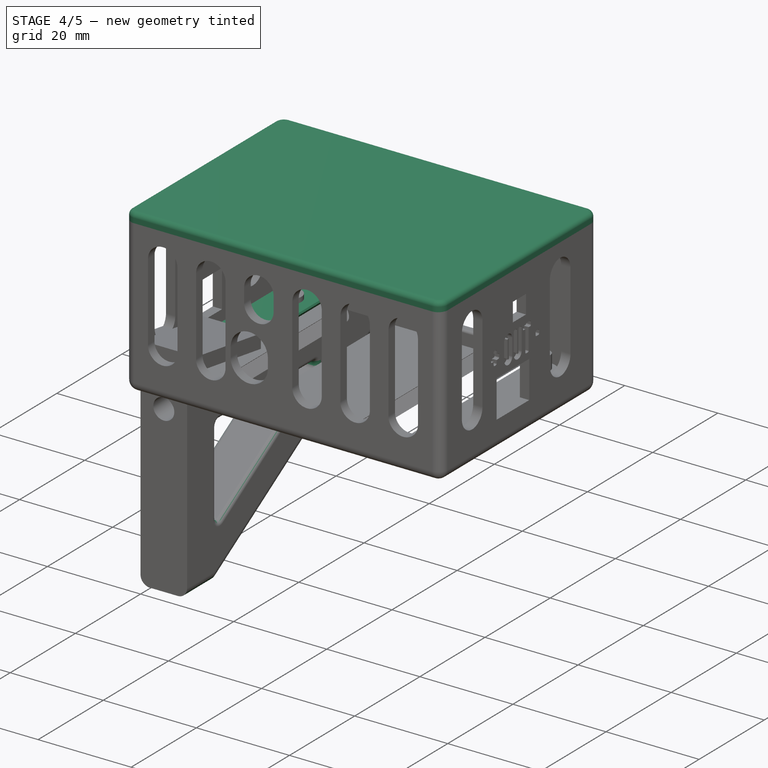
[diagram: stage 4 of 5 — iso view after this stage's code; geometry added in this stage tinted green]
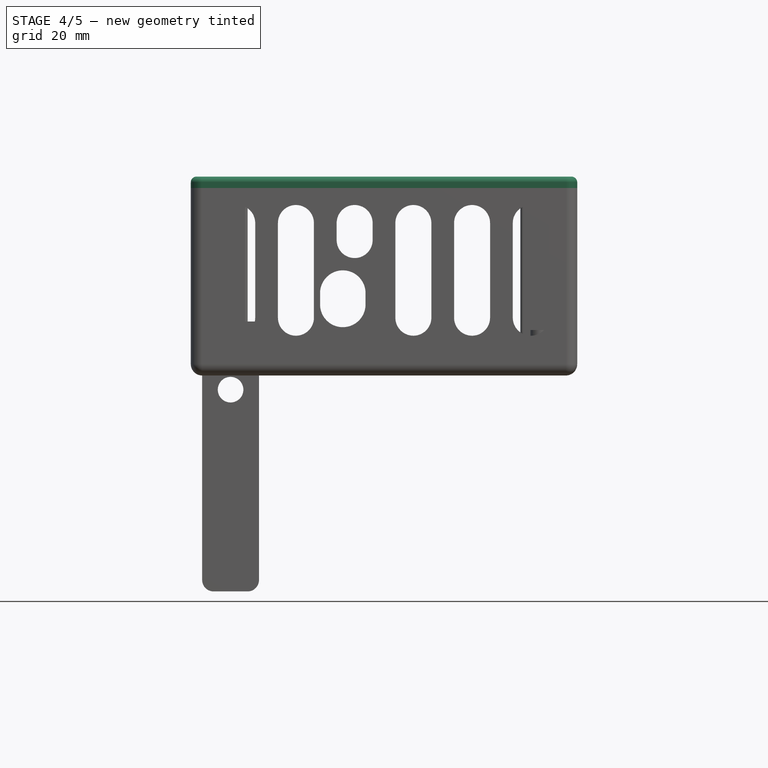
[diagram: stage 4 of 5 — front view after this stage's code; geometry added in this stage tinted green]
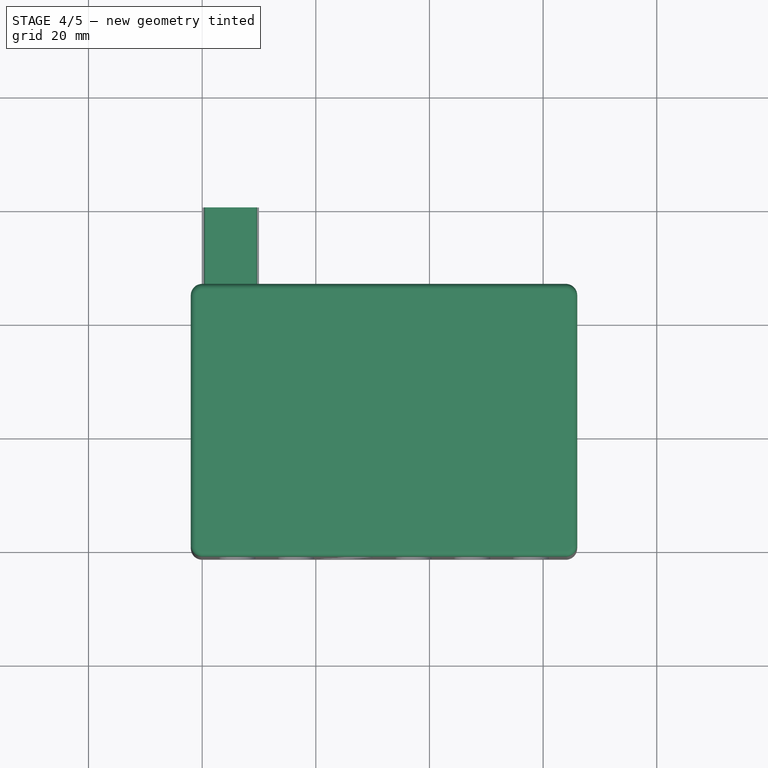
[diagram: stage 4 of 5 — top view after this stage's code; geometry added in this stage tinted green]
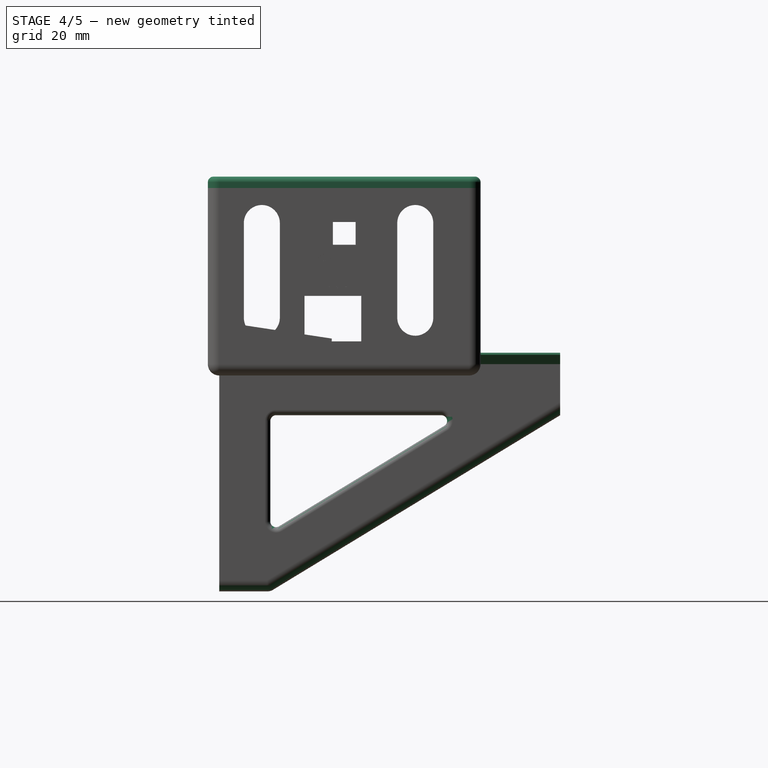
[diagram: stage 4 of 5 — right view after this stage's code; geometry added in this stage tinted green]
FEATURE [PartDesign::ShapeBinder] ShapeBinder
  Support = -> [Fillet]
  TraceSupport = false
FEATURE [Sketcher::SketchObject] Sketch008
  ExternalGeometry = -> [ShapeBinder]
  FullyConstrained = false
  MapMode = 5
  Placement = pos=(0,0,31) rot=(0,0,1;0rad)
  Support = -> [ShapeBinder]
  sketch-geometry (28):
    g0: LineSegment StartX=2.75 StartY=5.6 StartZ=0 EndX=0.75 EndY=5.6 EndZ=0
    g1: LineSegment StartX=0.75 StartY=5.6 StartZ=0 EndX=0.75 EndY=0.6 EndZ=0
    g2: LineSegment StartX=0.75 StartY=0.6 StartZ=0 EndX=5.75 EndY=0.6 EndZ=0
    g3: LineSegment StartX=5.75 StartY=0.6 StartZ=0 EndX=5.75 EndY=2.6 EndZ=0
    g4: LineSegment StartX=5.75 StartY=2.6 StartZ=0 EndX=2.75 EndY=2.6 EndZ=0
    g5: LineSegment StartX=2.75 StartY=2.6 StartZ=0 EndX=2.75 EndY=5.6 EndZ=0
    g6: LineSegment StartX=58.25 StartY=2.6 StartZ=0 EndX=58.25 EndY=0.6 EndZ=0
    g7: LineSegment StartX=58.25 StartY=0.6 StartZ=0 EndX=63.25 EndY=0.6 EndZ=0
    g8: LineSegment StartX=63.25 StartY=0.6 StartZ=0 EndX=63.25 EndY=5.6 EndZ=0
    g9: LineSegment StartX=63.25 StartY=5.6 StartZ=0 EndX=61.25 EndY=5.6 EndZ=0
    g10: LineSegment StartX=61.25 StartY=5.6 StartZ=0 EndX=61.25 EndY=2.6 EndZ=0
    g11: LineSegment StartX=61.25 StartY=2.6 StartZ=0 EndX=58.25 EndY=2.6 EndZ=0
    g12: LineSegment StartX=58.25 StartY=41.4 StartZ=0 EndX=58.25 EndY=43.4 EndZ=0
    g13: LineSegment StartX=58.25 StartY=43.4 StartZ=0 EndX=63.25 EndY=43.4 EndZ=0
    g14: LineSegment StartX=63.25 StartY=43.4 StartZ=0 EndX=63.25 EndY=38.4 EndZ=0
    g15: LineSegment StartX=63.25 StartY=38.4 StartZ=0 EndX=61.25 EndY=38.4 EndZ=0
    g16: LineSegment StartX=61.25 StartY=38.4 StartZ=0 EndX=61.25 EndY=41.4 EndZ=0
    g17: LineSegment StartX=61.25 StartY=41.4 StartZ=0 EndX=58.25 EndY=41.4 EndZ=0
    g18: LineSegment StartX=5.75 StartY=41.4 StartZ=0 EndX=5.75 EndY=43.4 EndZ=0
    g19: LineSegment StartX=5.75 StartY=43.4 StartZ=0 EndX=0.75 EndY=43.4 EndZ=0
    g20: LineSegment StartX=0.75 StartY=43.4 StartZ=0 EndX=0.75 EndY=38.4 EndZ=0
    g21: LineSegment StartX=0.75 StartY=38.4 StartZ=0 EndX=2.75 EndY=38.4 EndZ=0
    g22: LineSegment StartX=2.75 StartY=38.4 StartZ=0 EndX=2.75 EndY=41.4 EndZ=0
    g23: LineSegment StartX=2.75 StartY=41.4 StartZ=0 EndX=5.75 EndY=41.4 EndZ=0
    g24: LineSegment StartX=0 StartY=44 StartZ=0 EndX=0.75 EndY=43.4 EndZ=0
    g25: LineSegment StartX=62.9761 StartY=44.3206 StartZ=0 EndX=63.25 EndY=43.4 EndZ=0
    g26: LineSegment StartX=63.25 StartY=0.6 StartZ=0 EndX=64 EndY=0 EndZ=0
    g27: LineSegment StartX=0 StartY=0 StartZ=0 EndX=0.75 EndY=0.6 EndZ=0
  constraints (80):
    c: Coincident(g0,g1)
    c: Vertical(g1)
    c: Coincident(g1,g2)
    c: Horizontal(g2)
    c: Coincident(g2,g3)
    c: Coincident(g3,g4)
    c: Horizontal(g4)
    c: Coincident(g4,g5)
    c: Coincident(g5,g0)
    c: Vertical(g5)
    c: Coincident(g6,g7)
    c: Coincident(g7,g8)
    c: Vertical(g8)
    c: Coincident(g8,g9)
    c: Horizontal(g9)
    c: Coincident(g9,g10)
    c: Coincident(g10,g11)
    c: Coincident(g11,g6)
    c: Horizontal(g11)
    c: Coincident(g12,g13)
    c: Horizontal(g13)
    c: Coincident(g13,g14)
    c: Vertical(g14)
    c: Coincident(g14,g15)
    c: Horizontal(g15)
    c: Coincident(g15,g16)
    c: Coincident(g16,g17)
    c: Coincident(g17,g12)
    c: Horizontal(g17)
    c: Coincident(g18,g19)
    c: Horizontal(g19)
    c: Coincident(g19,g20)
    c: Vertical(g20)
    c: Coincident(g20,g21)
    c: Coincident(g21,g22)
    c: Vertical(g22)
    c: Coincident(g22,g23)
    c: Coincident(g23,g18)
    c: Horizontal(g23)
    c: Vertical(g18)
    c: Vertical(g12)
    c: Vertical(g10)
    c: Vertical(g3)
    c: Horizontal(g21)
    c: Vertical(g16)
    c: Equal(g21,g18)
    c: Equal(g18,g12)
    c: Equal(g12,g15)
    c: Equal(g15,g9)
    c: Equal(g9,g6)
    c: Equal(g6,g3)
    c: Equal(g3,g0)
    c: Horizontal(g0)
    c: DistanceX(g0,g0) = 2
    c: Equal(g5,g4)
    c: Equal(g4,g11)
    c: Equal(g11,g10)
    c: Equal(g10,g17)
    c: Equal(g17,g16)
    c: Equal(g16,g22)
    c: Equal(g22,g23)
    c: Vertical(g6)
    c: Horizontal(g7)
    c: Coincident(g25,g13)
    c: Coincident(g26,g7)
    c: Coincident(g27,g-1)
    c: Coincident(g27,g1)
    c: Equal(g24,g25)
    c: Equal(g25,g26)
    c: Equal(g26,g27)
    c: DistanceX(g26,g26) = 0.75
    c: Coincident(g24,g19)
    c: DistanceY(g26,g7) = 0.6
    c: Horizontal(g7,g1)
    c: Vertical(g7,g13)
    c: Horizontal(g13,g19)
    c: Vertical(g19,g1)
    c: Coincident(g26,g-3)
    c: DistanceY(g1,g1) = 5
    c: Coincident(g24,g-6)
FEATURE [Sketcher::SketchObject] Sketch009
  ExternalGeometry = -> [ShapeBinder]
  FullyConstrained = false
  MapMode = 5
  Placement = pos=(0,0,31) rot=(0,0,1;0rad)
  Support = -> [ShapeBinder]
  sketch-geometry (8):
    g0: LineSegment StartX=-3e-16 StartY=46 StartZ=0 EndX=64 EndY=46 EndZ=0
    g1: LineSegment StartX=66 StartY=44 StartZ=0 EndX=66 EndY=0 EndZ=0
    g2: LineSegment StartX=64 StartY=-2 StartZ=0 EndX=0 EndY=-2 EndZ=0
    g3: LineSegment StartX=-2 StartY=2e-16 StartZ=0 EndX=-2 EndY=44 EndZ=0
    g4: ArcOfCircle CenterX=0 CenterY=44 CenterZ=0 NormalX=0 NormalY=0 NormalZ=1 AngleXU=0 Radius=2 StartAngle=1.5708 EndAngle=3.14159
    g5: ArcOfCircle CenterX=64 CenterY=44 CenterZ=0 NormalX=0 NormalY=0 NormalZ=1 AngleXU=0 Radius=2 StartAngle=0 EndAngle=1.5708
    g6: ArcOfCircle CenterX=64 CenterY=0 CenterZ=0 NormalX=0 NormalY=0 NormalZ=1 AngleXU=0 Radius=2 StartAngle=4.71239 EndAngle=6.28319
    g7: ArcOfCircle CenterX=0 CenterY=0 CenterZ=0 NormalX=0 NormalY=0 NormalZ=1 AngleXU=0 Radius=2 StartAngle=3.14159 EndAngle=4.71239
  constraints (9):
    c: Coincident(g4,g3)
    c: Coincident(g4,g0)
    c: Coincident(g5,g0)
    c: Coincident(g5,g1)
    c: Coincident(g6,g2)
    c: Coincident(g6,g1)
    c: Coincident(g7,g-1)
    c: Coincident(g7,g3)
    c: Coincident(g7,g2)
FEATURE [PartDesign::ShapeBinder] ShapeBinder001
  Support = -> [Fillet]
  TraceSupport = false
FEATURE [Sketcher::SketchObject] Sketch011
  ExternalGeometry = -> [ShapeBinder001]
  FullyConstrained = false
  MapMode = 5
  Placement = pos=(0,0,0) rot=(0.57735,0.57735,0.57735;2.0944rad)
  Support = -> [ShapeBinder001]
  sketch-geometry (4):
    g0: LineSegment StartX=23.75 StartY=21.5 StartZ=0 EndX=20.25 EndY=21.5 EndZ=0
    g1: LineSegment StartX=20.25 StartY=21.5 StartZ=0 EndX=20.25 EndY=31 EndZ=0
    g2: LineSegment StartX=20.25 StartY=31 StartZ=0 EndX=23.75 EndY=31 EndZ=0
    g3: LineSegment StartX=23.75 StartY=31 StartZ=0 EndX=23.75 EndY=21.5 EndZ=0
  constraints (11):
    c: Coincident(g1,g2)
    c: Coincident(g2,g3)
    c: Coincident(g3,g0)
    c: Horizontal(g0)
    c: Horizontal(g2)
    c: Vertical(g1)
    c: Vertical(g3)
    c: Coincident(g1,g0)
    c: DistanceX(g0,g-4) = 0.25
    c: DistanceX(g-4,g0) = 0.25
    c: DistanceY(g-4,g0) = 0.5
FEATURE [PartDesign::ShapeBinder] ShapeBinder002
  Support = -> [Fillet]
  TraceSupport = false
FEATURE [PartDesign::Pad] Pad001
  Direction = (1,1,1)
  Length = 2
  Length2 = 100
  Profile = -> Sketch009
  Type = 0
FEATURE [PartDesign::Fillet] Fillet001
  Base = -> Pad001 [Face10]
  BaseFeature = -> Pad001
  Radius = 1
  SupportTransform = false
FEATURE [PartDesign::Pad] Pad002
  BaseFeature = -> Fillet001
  Direction = (1,1,1)
  Length = 3
  Length2 = 100
  Profile = -> Sketch008
  Reversed = true
  Type = 0
FEATURE [PartDesign::Fillet] Fillet002
  Base = -> Pad002 [Face44,Face43,Face45,Face46]
  BaseFeature = -> Pad002
  Radius = 0.75
  SupportTransform = false
FEATURE [PartDesign::Pad] Pad008  label="dovetail"
  BaseFeature = -> Pocket001
  Direction = (1,1,1)
  Length = 40
  Length2 = 100
  Placement = pos=(0,0,0) rot=(0.57735,0.57735,0.57735;2.0944rad)
  Profile = -> Sketch003
  Refine = true
  Type = 0
  expr: Length = <<dim001>>.dovetail_length
FEATURE [PartDesign::Chamfer] Chamfer  label="dovetail trim"
  Angle = 45
  Base = -> Pad008 [Edge20,Edge25]
  BaseFeature = -> Pad008
  ChamferType = 0
  FlipDirection = false
  Placement = pos=(0,0,0) rot=(0.57735,0.57735,0.57735;2.0944rad)
  Refine = true
  Size = 0.5
  Size2 = 1
  SupportTransform = false
  expr: Size = <<dim001>>.dovetail_trim
FEATURE [PartDesign::Fillet] Fillet004  label="inner chamfer"
  Base = -> Chamfer [Face17,Face16,Face15]
  BaseFeature = -> Chamfer
  Placement = pos=(0,0,0) rot=(0.57735,0.57735,0.57735;2.0944rad)
  Radius = 1
  Refine = true
  SupportTransform = false
  expr: Radius = <<dim001>>.inner_chamfer
FEATURE [PartDesign::Fillet] Fillet005  label="outer chamfer"
  Base = -> Fillet004 [Edge44,Edge11,Edge43,Edge10,Edge42]
  BaseFeature = -> Fillet004
  Placement = pos=(0,0,0) rot=(0.57735,0.57735,0.57735;2.0944rad)
  Radius = 2
  Refine = true
  SupportTransform = false
  expr: Radius = <<dim001>>.outer_chamfer
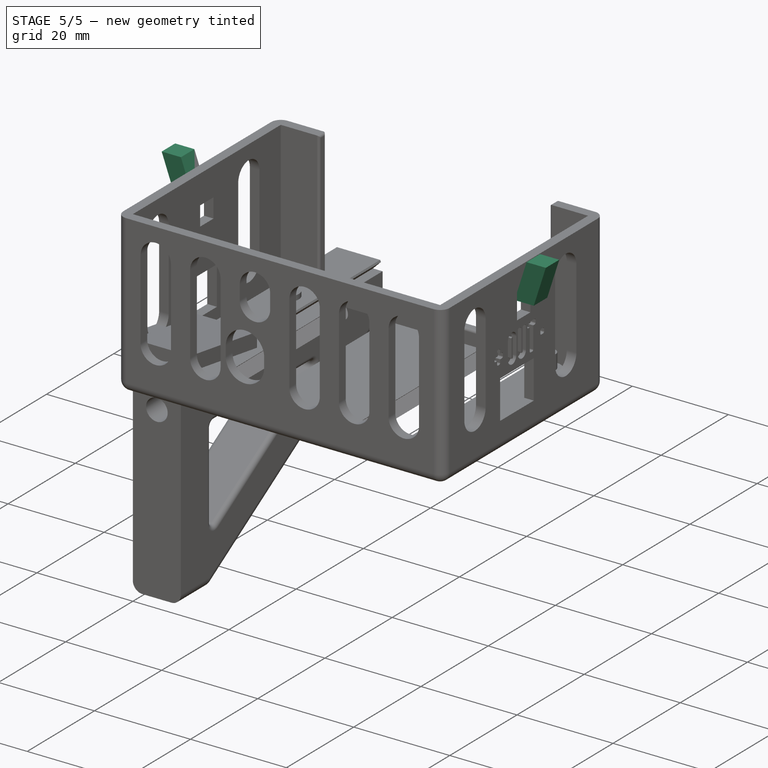
[diagram: stage 5 of 5 — iso view after this stage's code; geometry added in this stage tinted green]
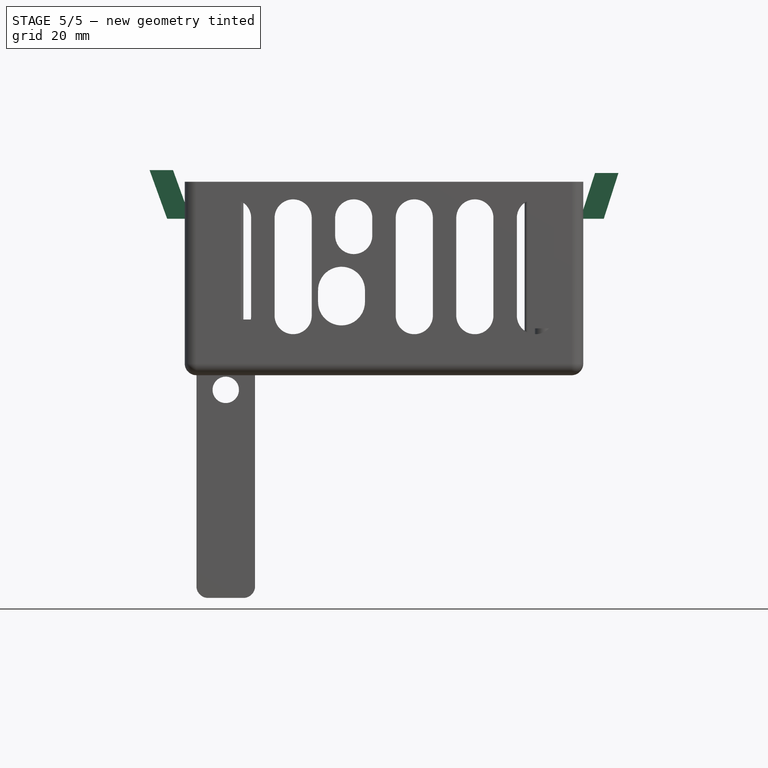
[diagram: stage 5 of 5 — front view after this stage's code; geometry added in this stage tinted green]
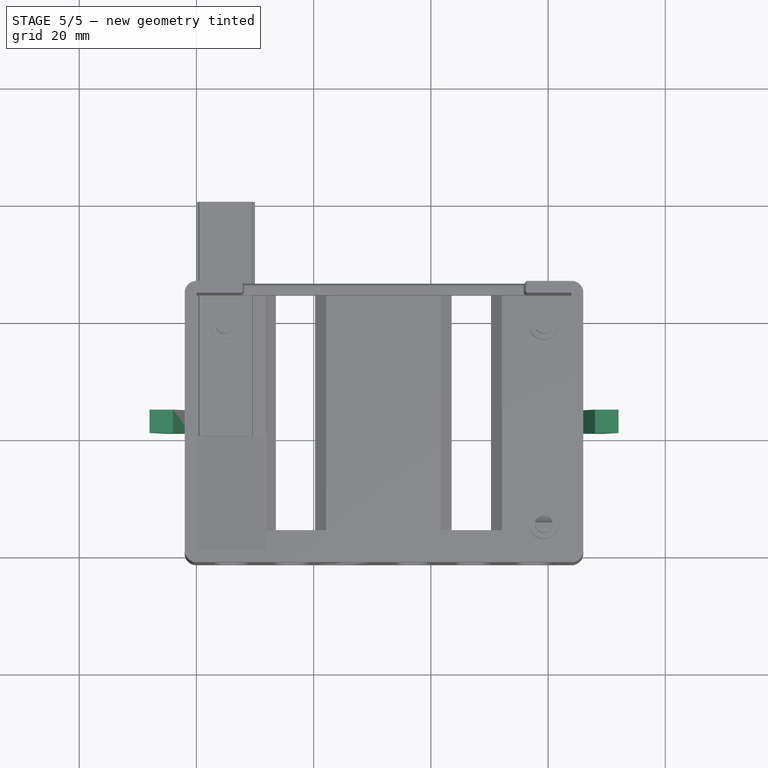
[diagram: stage 5 of 5 — top view after this stage's code; geometry added in this stage tinted green]
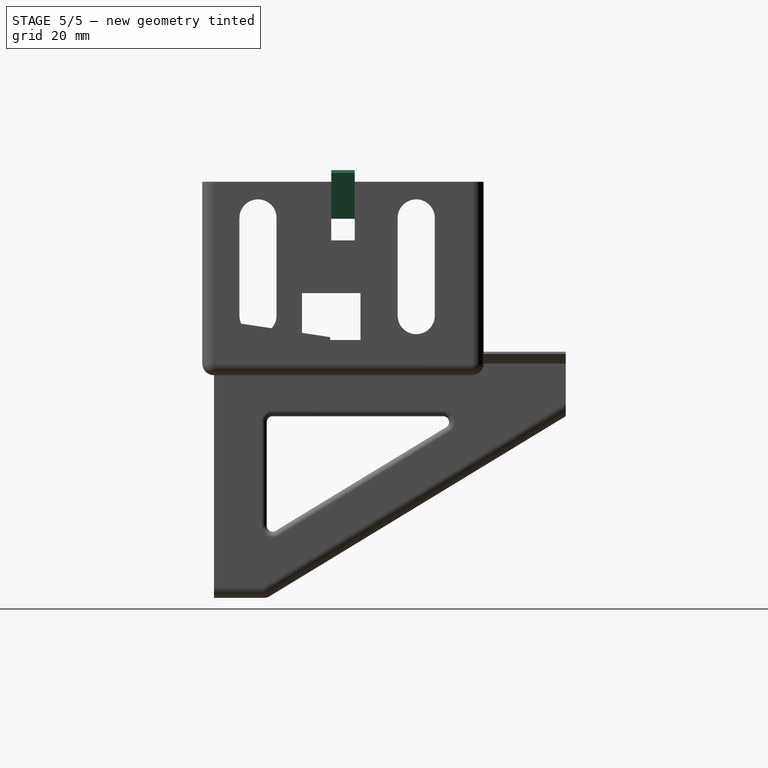
[diagram: stage 5 of 5 — right view after this stage's code; geometry added in this stage tinted green]
FEATURE [PartDesign::Pad] Pad003
  BaseFeature = -> Fillet002
  Direction = (1,1,1)
  Length = 1.5
  Length2 = 100
  Profile = -> Sketch011
  Type = 0
FEATURE [Sketcher::SketchObject] Sketch012
  ExternalGeometry = -> [Pad003,ShapeBinder001]
  FullyConstrained = true
  MapMode = 5
  Placement = pos=(0,0,0) rot=(0.57735,-0.57735,-0.57735;2.0944rad)
  Support = -> [ShapeBinder001]
  sketch-geometry (4):
    g0: LineSegment StartX=-23.75 StartY=24.5 StartZ=0 EndX=-20.25 EndY=24.5 EndZ=0
    g1: LineSegment StartX=-20.25 StartY=24.5 StartZ=0 EndX=-20.25 EndY=21.5 EndZ=0
    g2: LineSegment StartX=-20.25 StartY=21.5 StartZ=0 EndX=-23.75 EndY=21.5 EndZ=0
    g3: LineSegment StartX=-23.75 StartY=21.5 StartZ=0 EndX=-23.75 EndY=24.5 EndZ=0
  constraints (10):
    c: Coincident(g0,g1)
    c: Coincident(g1,g2)
    c: Coincident(g3,g0)
    c: Vertical(g1)
    c: Vertical(g3)
    c: Coincident(g3,g2)
    c: Coincident(g1,g-4)
    c: Coincident(g-3,g2)
    c: Horizontal(g0)
    c: DistanceY(g0,g-5) = 0.5
FEATURE [PartDesign::Fillet] Fillet003
  Base = -> Pad003 [Edge38,Edge37,Edge36]
  BaseFeature = -> Pad003
  Radius = 1.5
  SupportTransform = false
FEATURE [PartDesign::Pad] Pad004
  BaseFeature = -> Fillet003
  Direction = (1,1,1)
  Length = 1.5
  Length2 = 100
  Profile = -> Sketch012
  Type = 0
FEATURE [PartDesign::Draft] Draft
  Angle = 15
  Base = -> Pad004 [Face76]
  BaseFeature = -> Pad004
  Reversed = true
  SupportTransform = false
FEATURE [Sketcher::SketchObject] Sketch013
  ExternalGeometry = -> [Draft]
  FullyConstrained = true
  MapMode = 5
  Placement = pos=(0,0,31) rot=(1,0,0;3.14159rad)
  Support = -> [Draft]
  sketch-geometry (3):
    g0: LineSegment StartX=63.25 StartY=-0.6 StartZ=0 EndX=32 EndY=-0.6 EndZ=0
    g1: LineSegment StartX=32 StartY=-0.6 StartZ=0 EndX=0.75 EndY=-0.6 EndZ=0
    g2: LineSegment StartX=32 StartY=-43.4 StartZ=0 EndX=63.25 EndY=-43.4 EndZ=0
  constraints (8):
    c: Equal(g1,g0)
    c: Coincident(g2,g-3)
    c: Coincident(g1,g-5)
    c: Horizontal(g1)
    c: Coincident(g0,g1)
    c: Coincident(g0,g-4)
    c: Vertical(g2,g0)
    c: Parallel(g2,g0)
FEATURE [PartDesign::Plane] DatumPlane001
  Length = 83.8343
  MapMode = 7
  Placement = pos=(32,43.4,31) rot=(0.57735,-0.57735,-0.57735;2.0944rad)
  ResizeMode = 0
  Support = -> [Sketch013]
  Width = 70.8343
FEATURE [PartDesign::Mirrored] Mirrored
  BaseFeature = -> Draft
  MirrorPlane = -> DatumPlane001
  Originals = -> [Pad003,Fillet003,Pad004,Draft]
FEATURE [Sketcher::SketchObject] Sketch014
  ExternalGeometry = -> [Mirrored,ShapeBinder002]
  FullyConstrained = true
  MapMode = 5
  Placement = pos=(0,0,31) rot=(1,0,0;3.14159rad)
  Support = -> [Mirrored]
  sketch-geometry (33):
    g0: ArcOfCircle CenterX=6.33333 CenterY=-7 CenterZ=0 NormalX=0 NormalY=0 NormalZ=1 AngleXU=0 Radius=3 StartAngle=1e-16 EndAngle=3.14159
    g1: ArcOfCircle CenterX=6.33333 CenterY=-37 CenterZ=0 NormalX=0 NormalY=0 NormalZ=1 AngleXU=0 Radius=3 StartAngle=3.14159 EndAngle=6.28319
    g2: LineSegment StartX=3.33333 StartY=-7 StartZ=0 EndX=3.33333 EndY=-37 EndZ=0
    g3: LineSegment StartX=9.33333 StartY=-7 StartZ=0 EndX=9.33333 EndY=-37 EndZ=0
    g4: ArcOfCircle CenterX=37.1667 CenterY=-3.76667 CenterZ=0 NormalX=0 NormalY=0 NormalZ=1 AngleXU=0 Radius=3.16667 StartAngle=4.309e-13 EndAngle=3.14159
    g5: ArcOfCircle CenterX=37.1667 CenterY=-40.2333 CenterZ=0 NormalX=0 NormalY=0 NormalZ=1 AngleXU=0 Radius=3.16667 StartAngle=3.14159 EndAngle=6.28319
    g6: LineSegment StartX=34 StartY=-3.76667 StartZ=0 EndX=34 EndY=-40.2333 EndZ=0
    g7: LineSegment StartX=40.3333 StartY=-3.76667 StartZ=0 EndX=40.3333 EndY=-40.2333 EndZ=0
    g8: ArcOfCircle CenterX=16.5 CenterY=-3.76667 CenterZ=0 NormalX=0 NormalY=0 NormalZ=1 AngleXU=0 Radius=3.16667 StartAngle=4.539e-13 EndAngle=3.14159
    g9: ArcOfCircle CenterX=16.5 CenterY=-40.2333 CenterZ=0 NormalX=0 NormalY=0 NormalZ=1 AngleXU=0 Radius=3.16667 StartAngle=3.14159 EndAngle=6.28319
    g10: LineSegment StartX=13.3333 StartY=-3.76667 StartZ=0 EndX=13.3333 EndY=-40.2333 EndZ=0
    g11: LineSegment StartX=19.6667 StartY=-3.76667 StartZ=0 EndX=19.6667 EndY=-40.2333 EndZ=0
    g12: ArcOfCircle CenterX=26.8333 CenterY=-3.76667 CenterZ=0 NormalX=0 NormalY=0 NormalZ=1 AngleXU=0 Radius=3.16667 StartAngle=4.539e-13 EndAngle=3.14159
    g13: ArcOfCircle CenterX=26.8333 CenterY=-40.2333 CenterZ=0 NormalX=0 NormalY=0 NormalZ=1 AngleXU=0 Radius=3.16667 StartAngle=3.14159 EndAngle=6.28319
    g14: LineSegment StartX=23.6667 StartY=-3.76667 StartZ=0 EndX=23.6667 EndY=-40.2333 EndZ=0
    g15: LineSegment StartX=30 StartY=-3.76667 StartZ=0 EndX=30 EndY=-40.2333 EndZ=0
    g16: ArcOfCircle CenterX=57.6667 CenterY=-7 CenterZ=0 NormalX=0 NormalY=0 NormalZ=1 AngleXU=0 Radius=3 StartAngle=3e-16 EndAngle=3.14159
    g17: ArcOfCircle CenterX=57.6667 CenterY=-37 CenterZ=0 NormalX=0 NormalY=0 NormalZ=1 AngleXU=0 Radius=3 StartAngle=3.14159 EndAngle=6.28319
    g18: LineSegment StartX=54.6667 StartY=-7 StartZ=0 EndX=54.6667 EndY=-37 EndZ=0
    g19: LineSegment StartX=60.6667 StartY=-7 StartZ=0 EndX=60.6667 EndY=-37 EndZ=0
    g20: GeomPoint X=57.6667 Y=-4 Z=0
    g21: GeomPoint X=57.6667 Y=-40 Z=0
    g22: LineSegment StartX=63.25 StartY=-43.4 StartZ=0 EndX=0.75 EndY=-43.4 EndZ=0
    g23: LineSegment StartX=0.75 StartY=-43.4 StartZ=0 EndX=0.75 EndY=-0.6 EndZ=0
    g24: LineSegment StartX=0.75 StartY=-0.6 StartZ=0 EndX=63.25 EndY=-0.6 EndZ=0
    g25: LineSegment StartX=63.25 StartY=-0.6 StartZ=0 EndX=63.25 EndY=-43.4 EndZ=0
    g26: GeomPoint X=61.25 Y=-39.9 Z=0
    g27: GeomPoint X=3.33333 Y=-22 Z=0
    g28: GeomPoint X=3 Y=-22 Z=0
    g29: ArcOfCircle CenterX=47.5 CenterY=-3.76667 CenterZ=0 NormalX=0 NormalY=0 NormalZ=1 AngleXU=0 Radius=3.16667 StartAngle=2e-16 EndAngle=3.14159
    g30: ArcOfCircle CenterX=47.5 CenterY=-40.2333 CenterZ=0 NormalX=0 NormalY=0 NormalZ=1 AngleXU=0 Radius=3.16667 StartAngle=3.14159 EndAngle=6.28319
    g31: LineSegment StartX=44.3333 StartY=-3.76667 StartZ=0 EndX=44.3333 EndY=-40.2333 EndZ=0
    g32: LineSegment StartX=50.6667 StartY=-3.76667 StartZ=0 EndX=50.6667 EndY=-40.2333 EndZ=0
  constraints (77):
    c: Tangent(g0,g3) = 1.5708
    c: Tangent(g2,g1) = -1.5708
    c: Tangent(g3,g1) = 1.5708
    c: Vertical(g2)
    c: Tangent(g4,g7) = 1.5708
    c: Tangent(g4,g6) = -1.5708
    c: Tangent(g6,g5) = -1.5708
    c: Tangent(g7,g5) = 1.5708
    c: Vertical(g6)
    c: Equal(g4,g5)
    c: Tangent(g8,g11) = 1.5708
    c: Tangent(g8,g10) = -1.5708
    c: Tangent(g10,g9) = -1.5708
    c: Tangent(g11,g9) = 1.5708
    c: Vertical(g10)
    c: Equal(g8,g9)
    c: Tangent(g12,g15) = 1.5708
    c: Tangent(g12,g14) = -1.5708
    c: Tangent(g14,g13) = -1.5708
    c: Tangent(g15,g13) = 1.5708
    c: Vertical(g14)
    c: Equal(g12,g13)
    c: Tangent(g16,g19) = 1.5708
    c: Tangent(g16,g18) = -1.5708
    c: Tangent(g18,g17) = -1.5708
    c: Tangent(g19,g17) = 1.5708
    c: Equal(g12,g8)
    c: Equal(g11,g15)
    c: Horizontal(g9,g13)
    c: PointOnObject(g20,g16)
    c: Vertical(g16,g20)
    c: PointOnObject(g21,g17)
    c: Vertical(g21,g17)
    c: Horizontal(g5,g9)
    c: Vertical(g19)
    c: Tangent(g2,g0) = -1.5708
    c: Vertical(g3)
    c: Vertical(g18)
    c: Coincident(g22,g23)
    c: Coincident(g23,g24)
    c: Coincident(g24,g25)
    c: Coincident(g25,g22)
    c: Horizontal(g22)
    c: Horizontal(g24)
    c: Vertical(g23)
    c: Vertical(g25)
    c: Equal(g12,g4)
    c: DistanceY(g2,g2) = 30
    c: Symmetric(g-7,g-7,g26)
    c: Symmetric(g0,g1,g27)
    c: Equal(g0,g16)
    c: Equal(g3,g18)
    c: DistanceX(g0,g0) = 6
    c: Coincident(g22,g-9)
    c: Coincident(g23,g-8)
    c: Symmetric(g-10,g-10,g28)
    c: Horizontal(g27,g28)
    c: Vertical(g0,g-11)
    c: Vertical(g8,g-12)
    c: Vertical(g8,g-13)
    c: Tangent(g8,g24)
    c: Tangent(g9,g22)
    c: Vertical(g-14,g12)
    c: Vertical(g4,g-16)
    c: Horizontal(g4,g12)
    c: Horizontal(g16,g0)
    c: Vertical(g16,g-20)
    c: Tangent(g29,g32) = 1.5708
    c: Tangent(g29,g31) = -1.5708
    c: Tangent(g31,g30) = -1.5708
    c: Tangent(g32,g30) = 1.5708
    c: Vertical(g31)
    c: Equal(g29,g30)
    c: Vertical(g29,g-18)
    c: Equal(g4,g29)
    c: Horizontal(g29,g4)
    c: Horizontal(g30,g5)
FEATURE [PartDesign::Pocket] Pocket007
  BaseFeature = -> Mirrored
  Length = 5
  Length2 = 100
  Profile = -> Sketch014
  Type = 1
FEATURE [PartDesign::Body] Body001  label="cover"
  Group = -> [ShapeBinder,Sketch008,Sketch009,Pad001,Fillet001,Pad002,Fillet002,ShapeBinder001,Sketch011,Pad003,Fillet003,Sketch012,Pad004,Draft,Sketch013,DatumPlane001,Mirrored,Sketch014,Pocket007,ShapeBinder002]
  Origin = -> Origin001
  Tip = -> Pocket007
FEATURE [PartDesign::ShapeBinder] ShapeBinder004
  Support = -> [Pocket007]
  TraceSupport = false
FEATURE [Sketcher::SketchObject] Sketch017
  AttachmentOffset = pos=(0,0,0.2) rot=(0,0,1;0rad)
  ExternalGeometry = -> [ShapeBinder004]
  FullyConstrained = true
  MapMode = 5
  Placement = pos=(0,0,24.7) rot=(0,0,1;0rad)
  Support = -> [ShapeBinder004]
  sketch-geometry (6):
    g0: LineSegment StartX=65 StartY=24 StartZ=0 EndX=69 EndY=24 EndZ=0
    g1: LineSegment StartX=69 StartY=24 StartZ=0 EndX=69 EndY=20 EndZ=0
    g2: LineSegment StartX=69 StartY=20 StartZ=0 EndX=65 EndY=20 EndZ=0
    g3: LineSegment StartX=65 StartY=20 StartZ=0 EndX=65 EndY=24 EndZ=0
    g4: GeomPoint X=65.5 Y=22 Z=0
    g5: GeomPoint X=65 Y=22 Z=0
  constraints (14):
    c: Coincident(g0,g1)
    c: Coincident(g1,g2)
    c: Coincident(g2,g3)
    c: Coincident(g3,g0)
    c: Horizontal(g0)
    c: Horizontal(g2)
    c: Vertical(g1)
    c: Vertical(g3)
    c: Symmetric(g-3,g-3,g4)
    c: Symmetric(g2,g0,g5)
    c: Horizontal(g4,g5)
    c: DistanceY(g1,g1) = 4
    c: Equal(g0,g1)
    c: DistanceX(g5,g4) = 0.5
FEATURE [PartDesign::ShapeBinder] ShapeBinder005
  Support = -> [Pocket007]
  TraceSupport = false
FEATURE [PartDesign::ShapeBinder] ShapeBinder006
  Support = -> [Pocket007]
  TraceSupport = false
FEATURE [Sketcher::SketchObject] Sketch018
  ExternalGeometry = -> [ShapeBinder005]
  FullyConstrained = true
  MapMode = 5
  Placement = pos=(0,0,33) rot=(0,0,1;0rad)
  Support = -> [ShapeBinder005]
  sketch-geometry (6):
    g0: LineSegment StartX=-8 StartY=24 StartZ=0 EndX=-4 EndY=24 EndZ=0
    g1: LineSegment StartX=-4 StartY=24 StartZ=0 EndX=-4 EndY=20 EndZ=0
    g2: LineSegment StartX=-4 StartY=20 StartZ=0 EndX=-8 EndY=20 EndZ=0
    g3: LineSegment StartX=-8 StartY=20 StartZ=0 EndX=-8 EndY=24 EndZ=0
    g4: GeomPoint X=-4 Y=22 Z=0
    g5: GeomPoint X=-1 Y=22 Z=0
  constraints (14):
    c: Coincident(g0,g1)
    c: Coincident(g1,g2)
    c: Coincident(g2,g3)
    c: Coincident(g3,g0)
    c: Horizontal(g0)
    c: Horizontal(g2)
    c: Vertical(g1)
    c: Vertical(g3)
    c: Symmetric(g-3,g-3,g5)
    c: Symmetric(g0,g1,g4)
    c: Horizontal(g4,g5)
    c: DistanceX(g4,g5) = 3
    c: DistanceY(g3,g3) = 4
    c: Equal(g3,g0)
FEATURE [Sketcher::SketchObject] Sketch019
  AttachmentOffset = pos=(0,0,0.2) rot=(0,0,1;0rad)
  ExternalGeometry = -> [ShapeBinder006]
  FullyConstrained = true
  MapMode = 5
  Placement = pos=(0,0,24.7) rot=(0,0,1;0rad)
  Support = -> [ShapeBinder006]
  sketch-geometry (6):
    g0: LineSegment StartX=-5 StartY=24 StartZ=0 EndX=-1 EndY=24 EndZ=0
    g1: LineSegment StartX=-1 StartY=24 StartZ=0 EndX=-1 EndY=20 EndZ=0
    g2: LineSegment StartX=-1 StartY=20 StartZ=0 EndX=-5 EndY=20 EndZ=0
    g3: LineSegment StartX=-5 StartY=20 StartZ=0 EndX=-5 EndY=24 EndZ=0
    g4: GeomPoint X=-1 Y=22 Z=0
    g5: GeomPoint X=-1.5 Y=22 Z=0
  constraints (14):
    c: Coincident(g0,g1)
    c: Coincident(g1,g2)
    c: Coincident(g2,g3)
    c: Coincident(g3,g0)
    c: Horizontal(g0)
    c: Horizontal(g2)
    c: Vertical(g1)
    c: Vertical(g3)
    c: Symmetric(g-3,g-3,g5)
    c: Symmetric(g1,g0,g4)
    c: Horizontal(g4,g5)
    c: DistanceX(g5,g4) = 0.5
    c: DistanceY(g3,g3) = 4
    c: Equal(g3,g0)
FEATURE [PartDesign::AdditiveLoft] AdditiveLoft001
  Closed = false
  Profile = -> Sketch019
  Ruled = false
  Sections = -> [Sketch018]
FEATURE [PartDesign::ShapeBinder] ShapeBinder003
  Support = -> [Pocket007]
  TraceSupport = false
FEATURE [Sketcher::SketchObject] Sketch016
  ExternalGeometry = -> [ShapeBinder003]
  FullyConstrained = true
  MapMode = 5
  Placement = pos=(0,0,32.5) rot=(0,0,1;0rad)
  Support = -> [ShapeBinder003]
  sketch-geometry (6):
    g0: LineSegment StartX=68 StartY=24 StartZ=0 EndX=72 EndY=24 EndZ=0
    g1: LineSegment StartX=72 StartY=24 StartZ=0 EndX=72 EndY=20 EndZ=0
    g2: LineSegment StartX=72 StartY=20 StartZ=0 EndX=68 EndY=20 EndZ=0
    g3: LineSegment StartX=68 StartY=20 StartZ=0 EndX=68 EndY=24 EndZ=0
    g4: GeomPoint X=65 Y=22 Z=0
    g5: GeomPoint X=68 Y=22 Z=0
  constraints (14):
    c: Symmetric(g-3,g-3,g4)
    c: Symmetric(g0,g2,g5)
    c: Horizontal(g4,g5)
    c: DistanceX(g4,g5) = 3
    c: DistanceX(g0,g0) = 4
    c: Equal(g0,g1)
    c: Coincident(g1,g2)
    c: Coincident(g2,g3)
    c: Horizontal(g0)
    c: Horizontal(g2)
    c: Vertical(g1)
    c: Coincident(g0,g1)
    c: Coincident(g3,g0)
    c: Vertical(g3)
FEATURE [PartDesign::AdditiveLoft] AdditiveLoft
  Closed = false
  Profile = -> Sketch016
  Ruled = false
  Sections = -> [Sketch017]
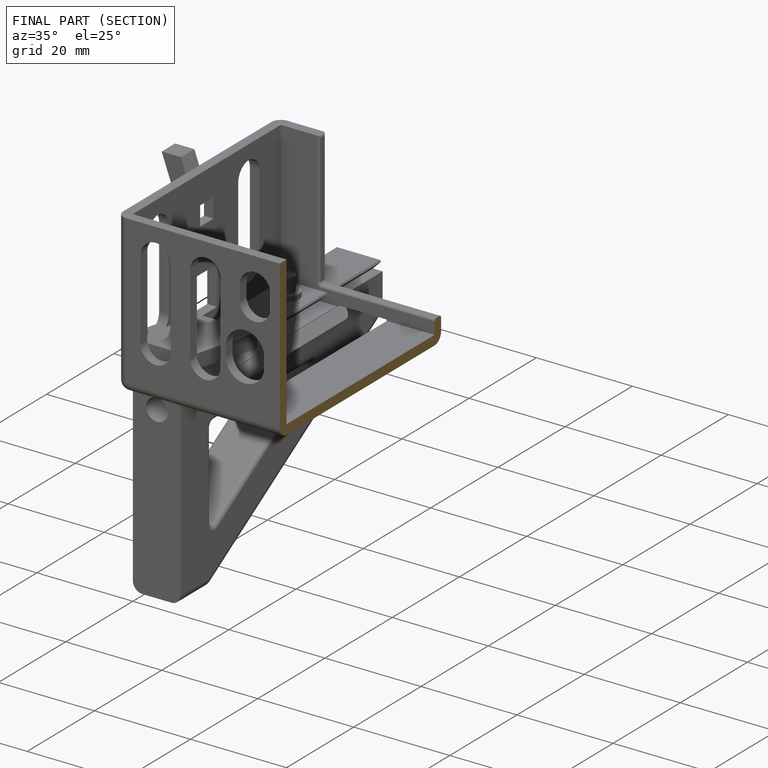
[diagram: finished part — half-section view (interior)]
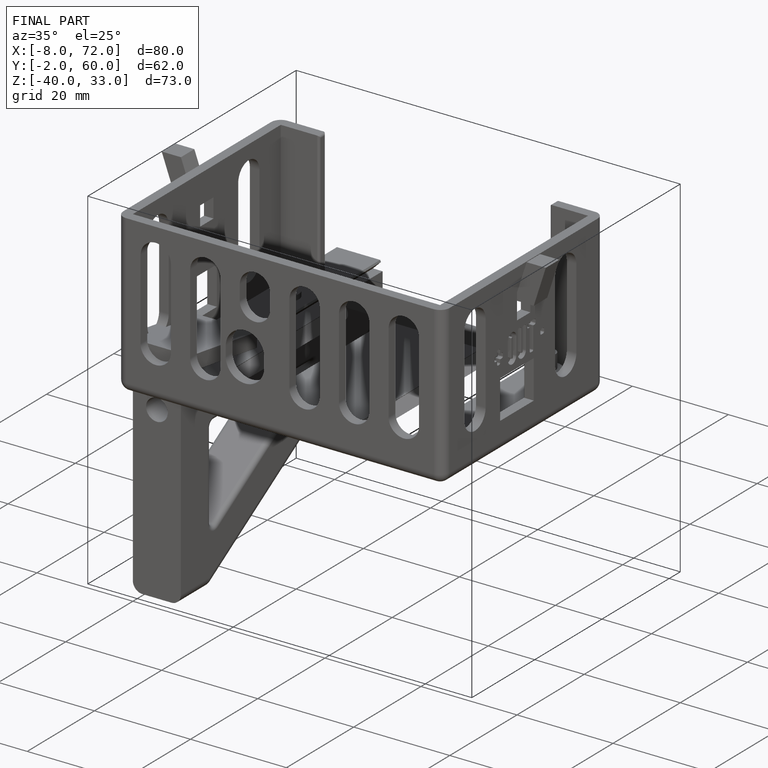
[diagram: finished part — iso view with bounding-box wireframe]
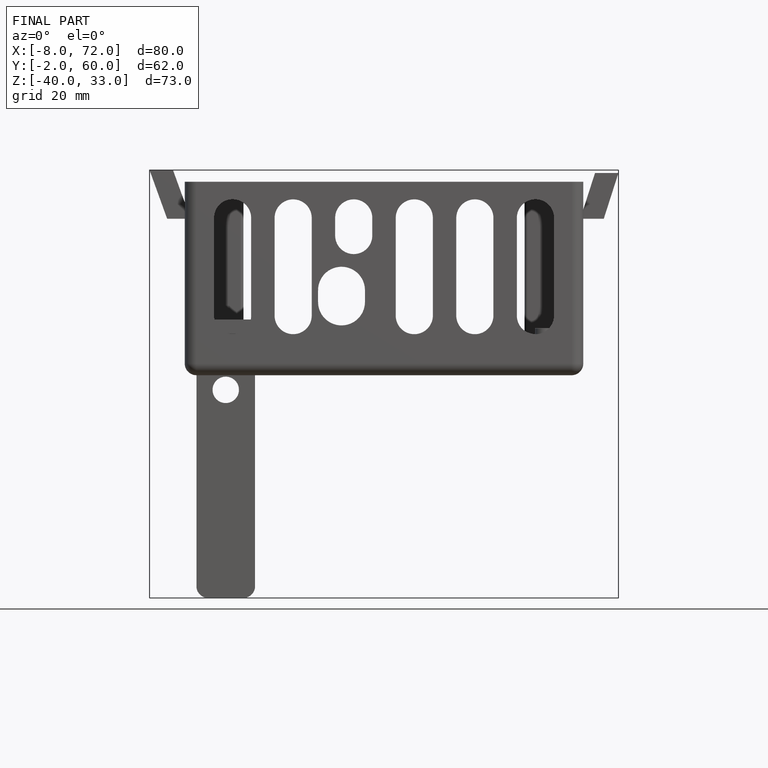
[diagram: finished part — front view with bounding-box wireframe]
